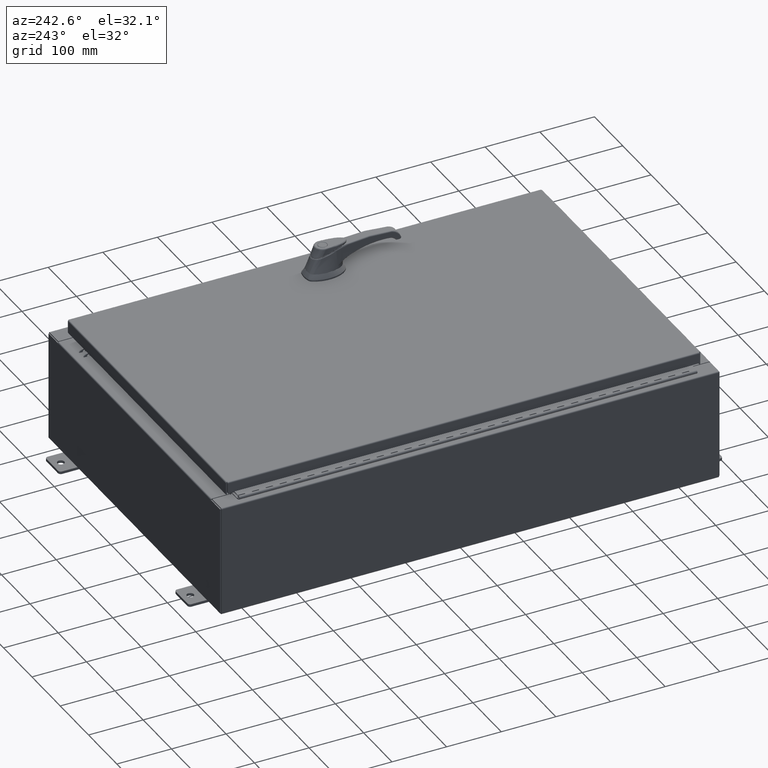
[diagram: clean part render]
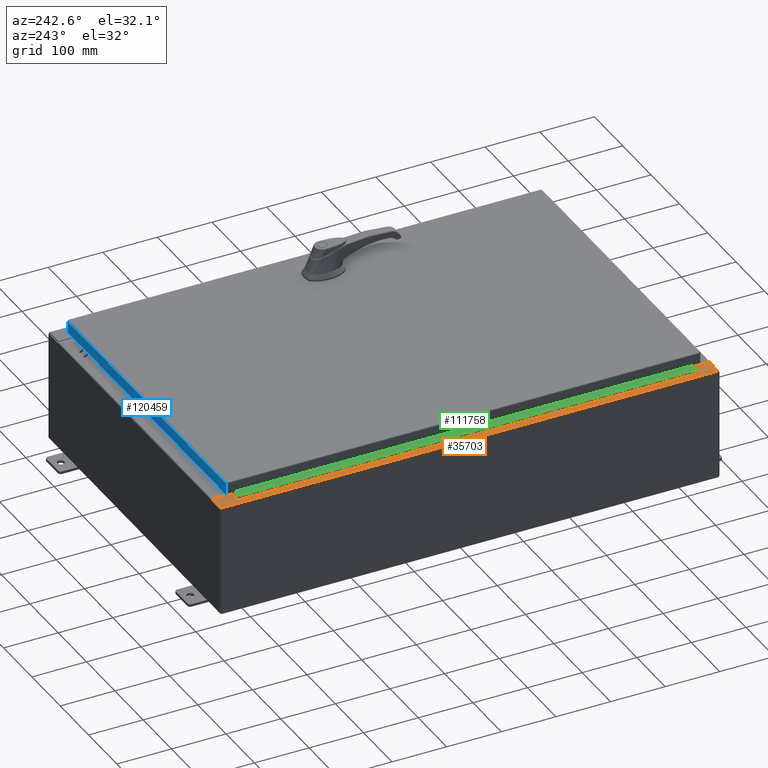
[diagram: same view with three faces highlighted in distinct colors, each labeled with its STEP entity id]
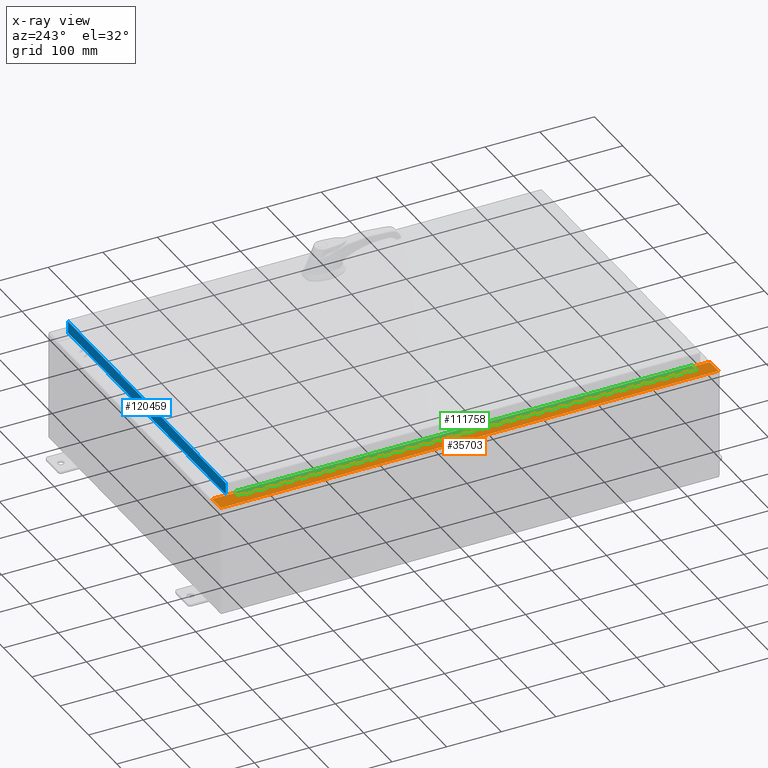
[diagram: x-ray of the same camera — body ghosted, the three highlighted faces saturated]
A machine part, auxiliary view with three faces highlighted in distinct colors.
The next image is the same camera in x-ray (body ghosted, the three faces saturated) — at least one of them is partly hidden behind the body in this view.
Their STEP definitions:

[orange] entity #35703 — the highlighted planar face has unit normal (0, 0, -1).
#2703 = EDGE_CURVE ( 'NONE', #100783, #73863, #89244, .T. ) ;
#3445 = DIRECTION ( 'NONE',  ( 7.132762385546384700E-015, 0.0000000000000000000, -1.000000000000000000 ) ) ;
#3683 = CARTESIAN_POINT ( 'NONE',  ( -5.679009539018295300E-014, 17.92529999999999600, 7.925300000000085300 ) ) ;
#5045 = VECTOR ( 'NONE', #13373, 39.37007874015748100 ) ;
#5261 = VERTEX_POINT ( 'NONE', #50785 ) ;
#7211 = CARTESIAN_POINT ( 'NONE',  ( -10.69970000000003000, 16.63110000000000000, 7.925300000000009800 ) ) ;
#8827 = DIRECTION ( 'NONE',  ( -7.132762385546384700E-015, -0.0000000000000000000, 1.000000000000000000 ) ) ;
#9139 = ORIENTED_EDGE ( 'NONE', *, *, #57194, .F. ) ;
#9217 = CARTESIAN_POINT ( 'NONE',  ( -10.71270000000003000, -16.59375000000000400, 7.925300000000010700 ) ) ;
#9219 = VERTEX_POINT ( 'NONE', #84929 ) ;
#9582 = VECTOR ( 'NONE', #52990, 39.37007874015748100 ) ;
#11596 = VERTEX_POINT ( 'NONE', #84710 ) ;
#13373 = DIRECTION ( 'NONE',  ( 1.000000000000000000, -0.0000000000000000000, 7.132762385546384700E-015 ) ) ;
#14047 = DIRECTION ( 'NONE',  ( 1.000000000000000000, -4.340572780400098900E-014, -2.170286390200049500E-014 ) ) ;
#14561 = CARTESIAN_POINT ( 'NONE',  ( -10.71270000000003000, -16.59375000000000400, 7.925300000000010700 ) ) ;
#14760 = CARTESIAN_POINT ( 'NONE',  ( -10.69970000000003000, 0.0000000000000000000, 7.925300000000008900 ) ) ;
#18929 = CARTESIAN_POINT ( 'NONE',  ( -10.69970000000003000, 17.92529999999999600, 7.925300000000008900 ) ) ;
#19678 = EDGE_CURVE ( 'NONE', #5261, #69593, #73473, .T. ) ;
#22729 = LINE ( 'NONE', #65748, #36108 ) ;
#23803 = ORIENTED_EDGE ( 'NONE', *, *, #78941, .T. ) ;
#24549 = EDGE_LOOP ( 'NONE', ( #47423, #48483, #98053, #122124, #88246, #23803, #93558, #110491, #121472, #85257, #62821, #9139 ) ) ;
#28030 = VERTEX_POINT ( 'NONE', #76485 ) ;
#30114 = EDGE_CURVE ( 'NONE', #32064, #30749, #65403, .T. ) ;
#30749 = VERTEX_POINT ( 'NONE', #14561 ) ;
#31819 = CARTESIAN_POINT ( 'NONE',  ( -5.679009539018295300E-014, 0.0000000000000000000, 7.925300000000085300 ) ) ;
#32064 = VERTEX_POINT ( 'NONE', #77653 ) ;
#35703 = ADVANCED_FACE ( 'NONE', ( #116687 ), #107806, .F. ) ;
#35938 = DIRECTION ( 'NONE',  ( -1.000000000000000000, -4.340572780400098900E-014, 2.170286390200049500E-014 ) ) ;
#35984 = AXIS2_PLACEMENT_3D ( 'NONE', #36467, #102947, #46008 ) ;
#36108 = VECTOR ( 'NONE', #94077, 39.37007874015748100 ) ;
#36467 = CARTESIAN_POINT ( 'NONE',  ( -10.75005000000003000, -16.61242500000000200, 7.925300000000010700 ) ) ;
#41198 = LINE ( 'NONE', #9217, #44217 ) ;
#42456 = CARTESIAN_POINT ( 'NONE',  ( -5.679009539018295300E-014, -17.92530000000000400, 7.925300000000085300 ) ) ;
#42894 = VERTEX_POINT ( 'NONE', #48045 ) ;
#44217 = VECTOR ( 'NONE', #75719, 39.37007874015748100 ) ;
#44601 = CARTESIAN_POINT ( 'NONE',  ( -10.75005000000003000, -16.63110000000000400, 7.925300000000008900 ) ) ;
#46008 = DIRECTION ( 'NONE',  ( 1.000000000000000000, 0.0000000000000000000, 0.0000000000000000000 ) ) ;
#47073 = EDGE_CURVE ( 'NONE', #9219, #73863, #68325, .T. ) ;
#47423 = ORIENTED_EDGE ( 'NONE', *, *, #19678, .F. ) ;
#48045 = CARTESIAN_POINT ( 'NONE',  ( -10.69970000000003000, -16.63110000000000700, 7.925300000000008900 ) ) ;
#48483 = ORIENTED_EDGE ( 'NONE', *, *, #49401, .T. ) ;
#48908 = AXIS2_PLACEMENT_3D ( 'NONE', #65724, #8827, #75352 ) ;
#49401 = EDGE_CURVE ( 'NONE', #5261, #100783, #112390, .T. ) ;
#50785 = CARTESIAN_POINT ( 'NONE',  ( -10.69970000000003000, 16.63110000000000000, 7.925300000000008900 ) ) ;
#52428 = CARTESIAN_POINT ( 'NONE',  ( -10.71270000000003000, 16.59375000000000000, 7.925300000000010700 ) ) ;
#52890 = EDGE_CURVE ( 'NONE', #79342, #32064, #22729, .T. ) ;
#52990 = DIRECTION ( 'NONE',  ( 0.0000000000000000000, 1.000000000000000000, 0.0000000000000000000 ) ) ;
#53510 = CIRCLE ( 'NONE', #48908, 0.01867499999999949400 ) ;
#55639 = LINE ( 'NONE', #42456, #5045 ) ;
#57194 = EDGE_CURVE ( 'NONE', #69593, #79342, #53510, .T. ) ;
#60924 = VECTOR ( 'NONE', #114614, 39.37007874015748100 ) ;
#62057 = DIRECTION ( 'NONE',  ( 0.0000000000000000000, 1.000000000000000000, 0.0000000000000000000 ) ) ;
#62821 = ORIENTED_EDGE ( 'NONE', *, *, #52890, .F. ) ;
#65403 = LINE ( 'NONE', #52428, #118950 ) ;
#65724 = CARTESIAN_POINT ( 'NONE',  ( -10.75005000000003000, 16.61242499999999800, 7.925300000000010700 ) ) ;
#65748 = CARTESIAN_POINT ( 'NONE',  ( -10.75005000000003000, 16.59375000000000000, 7.925300000000010700 ) ) ;
#68325 = LINE ( 'NONE', #118302, #90680 ) ;
#69593 = VERTEX_POINT ( 'NONE', #71769 ) ;
#70000 = DIRECTION ( 'NONE',  ( -1.000000000000000000, 0.0000000000000000000, -7.132762385546384700E-015 ) ) ;
#71769 = CARTESIAN_POINT ( 'NONE',  ( -10.75005000000003000, 16.63110000000000000, 7.925300000000008900 ) ) ;
#73473 = LINE ( 'NONE', #7211, #92795 ) ;
#73863 = VERTEX_POINT ( 'NONE', #111576 ) ;
#75352 = DIRECTION ( 'NONE',  ( 1.000000000000000000, 0.0000000000000000000, 0.0000000000000000000 ) ) ;
#75719 = DIRECTION ( 'NONE',  ( -1.000000000000000000, 0.0000000000000000000, 0.0000000000000000000 ) ) ;
#76485 = CARTESIAN_POINT ( 'NONE',  ( -10.75005000000003000, -16.59375000000000400, 7.925300000000008900 ) ) ;
#77653 = CARTESIAN_POINT ( 'NONE',  ( -10.71270000000003000, 16.59375000000000000, 7.925300000000010700 ) ) ;
#78941 = EDGE_CURVE ( 'NONE', #11596, #42894, #85458, .T. ) ;
#79342 = VERTEX_POINT ( 'NONE', #108372 ) ;
#80506 = DIRECTION ( 'NONE',  ( -0.0000000000000000000, 1.000000000000000000, -0.0000000000000000000 ) ) ;
#81669 = VERTEX_POINT ( 'NONE', #44601 ) ;
#84710 = CARTESIAN_POINT ( 'NONE',  ( -10.69970000000003000, -17.92530000000000400, 7.925300000000008900 ) ) ;
#84929 = CARTESIAN_POINT ( 'NONE',  ( -11.91230000000002900, -17.92530000000000400, 7.925300000000000000 ) ) ;
#85172 = AXIS2_PLACEMENT_3D ( 'NONE', #31819, #3445, #70000 ) ;
#85257 = ORIENTED_EDGE ( 'NONE', *, *, #30114, .F. ) ;
#85458 = LINE ( 'NONE', #14760, #9582 ) ;
#87914 = EDGE_CURVE ( 'NONE', #30749, #28030, #41198, .T. ) ;
#88246 = ORIENTED_EDGE ( 'NONE', *, *, #117494, .T. ) ;
#89244 = LINE ( 'NONE', #3683, #60924 ) ;
#89252 = CIRCLE ( 'NONE', #35984, 0.01867499999999949400 ) ;
#90096 = CARTESIAN_POINT ( 'NONE',  ( -10.75005000000003000, -16.63110000000000400, 7.925300000000010700 ) ) ;
#90680 = VECTOR ( 'NONE', #80506, 39.37007874015748100 ) ;
#90779 = CARTESIAN_POINT ( 'NONE',  ( -10.69970000000003000, 0.0000000000000000000, 7.925300000000008900 ) ) ;
#92769 = LINE ( 'NONE', #90096, #117989 ) ;
#92795 = VECTOR ( 'NONE', #35938, 39.37007874015748100 ) ;
#93558 = ORIENTED_EDGE ( 'NONE', *, *, #118062, .F. ) ;
#94077 = DIRECTION ( 'NONE',  ( 1.000000000000000000, 0.0000000000000000000, 0.0000000000000000000 ) ) ;
#98053 = ORIENTED_EDGE ( 'NONE', *, *, #2703, .T. ) ;
#100783 = VERTEX_POINT ( 'NONE', #18929 ) ;
#102947 = DIRECTION ( 'NONE',  ( -7.132762385546384700E-015, -0.0000000000000000000, 1.000000000000000000 ) ) ;
#107806 = PLANE ( 'NONE',  #85172 ) ;
#108372 = CARTESIAN_POINT ( 'NONE',  ( -10.75005000000003000, 16.59375000000000000, 7.925300000000008900 ) ) ;
#109707 = EDGE_CURVE ( 'NONE', #28030, #81669, #89252, .T. ) ;
#110491 = ORIENTED_EDGE ( 'NONE', *, *, #109707, .F. ) ;
#111576 = CARTESIAN_POINT ( 'NONE',  ( -11.91230000000002900, 17.92529999999999600, 7.925300000000000000 ) ) ;
#112390 = LINE ( 'NONE', #90779, #115349 ) ;
#114614 = DIRECTION ( 'NONE',  ( -1.000000000000000000, 0.0000000000000000000, -7.132762385546384700E-015 ) ) ;
#115349 = VECTOR ( 'NONE', #62057, 39.37007874015748100 ) ;
#116687 = FACE_OUTER_BOUND ( 'NONE', #24549, .T. ) ;
#117494 = EDGE_CURVE ( 'NONE', #9219, #11596, #55639, .T. ) ;
#117989 = VECTOR ( 'NONE', #14047, 39.37007874015748100 ) ;
#118062 = EDGE_CURVE ( 'NONE', #81669, #42894, #92769, .T. ) ;
#118302 = CARTESIAN_POINT ( 'NONE',  ( -11.91230000000002900, 17.92529999999999600, 7.925300000000000000 ) ) ;
#118902 = DIRECTION ( 'NONE',  ( -0.0000000000000000000, -1.000000000000000000, -0.0000000000000000000 ) ) ;
#118950 = VECTOR ( 'NONE', #118902, 39.37007874015748100 ) ;
#121472 = ORIENTED_EDGE ( 'NONE', *, *, #87914, .F. ) ;
#122124 = ORIENTED_EDGE ( 'NONE', *, *, #47073, .F. ) ;

[blue] entity #120459 — the highlighted planar face has unit normal (0, -1, -0).
#20 = DIRECTION ( 'NONE',  ( 3.122488847327582500E-031, -1.000000000000000000, -2.532419924601858200E-015 ) ) ;
#2791 = LINE ( 'NONE', #32999, #78706 ) ;
#3621 = EDGE_CURVE ( 'NONE', #101804, #48511, #44557, .T. ) ;
#5667 = CARTESIAN_POINT ( 'NONE',  ( 10.98915786437626500, 17.09400000000000800, 4.354999984715576500E-014 ) ) ;
#5870 = LINE ( 'NONE', #74531, #101112 ) ;
#9405 = EDGE_LOOP ( 'NONE', ( #47089, #22306, #68558, #81794 ) ) ;
#14121 = VECTOR ( 'NONE', #94243, 39.37007874015748100 ) ;
#20441 = VERTEX_POINT ( 'NONE', #115510 ) ;
#22306 = ORIENTED_EDGE ( 'NONE', *, *, #3621, .T. ) ;
#28407 = CARTESIAN_POINT ( 'NONE',  ( -5.337582435621772200E-030, 17.09400000000000800, 4.354999984715576500E-014 ) ) ;
#32999 = CARTESIAN_POINT ( 'NONE',  ( -11.07800000000000300, 17.09400000000000800, -0.9377000000000025300 ) ) ;
#44557 = LINE ( 'NONE', #5667, #92126 ) ;
#47089 = ORIENTED_EDGE ( 'NONE', *, *, #57182, .F. ) ;
#48511 = VERTEX_POINT ( 'NONE', #58048 ) ;
#49797 = CARTESIAN_POINT ( 'NONE',  ( 10.98915786437626500, 17.09400000000000800, -0.08770000000000008300 ) ) ;
#50304 = EDGE_CURVE ( 'NONE', #20441, #93242, #109265, .T. ) ;
#57182 = EDGE_CURVE ( 'NONE', #101804, #20441, #5870, .T. ) ;
#57413 = FACE_OUTER_BOUND ( 'NONE', #9405, .T. ) ;
#58048 = CARTESIAN_POINT ( 'NONE',  ( 10.98915786437626500, 17.09400000000000800, -0.9376999999999997600 ) ) ;
#65335 = DIRECTION ( 'NONE',  ( -1.000000000000000000, -3.122488847327583000E-031, -7.817847125977018100E-046 ) ) ;
#66573 = DIRECTION ( 'NONE',  ( 0.0000000000000000000, 2.532419924601858200E-015, -1.000000000000000000 ) ) ;
#67045 = EDGE_CURVE ( 'NONE', #93242, #48511, #2791, .T. ) ;
#68171 = DIRECTION ( 'NONE',  ( 0.0000000000000000000, 2.532419924601858200E-015, -1.000000000000000000 ) ) ;
#68558 = ORIENTED_EDGE ( 'NONE', *, *, #67045, .F. ) ;
#74531 = CARTESIAN_POINT ( 'NONE',  ( -11.07800000000000300, 17.09400000000000800, -0.08770000000000008300 ) ) ;
#74961 = PLANE ( 'NONE',  #101867 ) ;
#75143 = CARTESIAN_POINT ( 'NONE',  ( -10.98915786437627200, 17.09400000000000800, -0.07469999999999980800 ) ) ;
#78706 = VECTOR ( 'NONE', #89908, 39.37007874015748100 ) ;
#81794 = ORIENTED_EDGE ( 'NONE', *, *, #50304, .F. ) ;
#89908 = DIRECTION ( 'NONE',  ( 1.000000000000000000, -4.379057701015054300E-047, 1.233005954894504400E-016 ) ) ;
#92126 = VECTOR ( 'NONE', #68171, 39.37007874015748100 ) ;
#93242 = VERTEX_POINT ( 'NONE', #122685 ) ;
#94243 = DIRECTION ( 'NONE',  ( -0.0000000000000000000, 2.532419924601858200E-015, -1.000000000000000000 ) ) ;
#101112 = VECTOR ( 'NONE', #65335, 39.37007874015748100 ) ;
#101804 = VERTEX_POINT ( 'NONE', #49797 ) ;
#101867 = AXIS2_PLACEMENT_3D ( 'NONE', #28407, #20, #66573 ) ;
#109265 = LINE ( 'NONE', #75143, #14121 ) ;
#115510 = CARTESIAN_POINT ( 'NONE',  ( -10.98915786437626900, 17.09400000000000800, -0.08770000000000008300 ) ) ;
#120459 = ADVANCED_FACE ( 'NONE', ( #57413 ), #74961, .F. ) ;
#122685 = CARTESIAN_POINT ( 'NONE',  ( -10.98915786437627200, 17.09400000000000800, -0.9377000000000025300 ) ) ;

[green] entity #111758 — the highlighted planar face has unit normal (-0, -0, 1).
#2 = DIRECTION ( 'NONE',  ( 0.0000000000000000000, -0.0000000000000000000, -1.000000000000000000 ) ) ;
#63 = DIRECTION ( 'NONE',  ( -3.389037039080723100E-015, -1.000000000000000000, 0.0000000000000000000 ) ) ;
#79 = EDGE_CURVE ( 'NONE', #34016, #101136, #25712, .T. ) ;
#227 = ORIENTED_EDGE ( 'NONE', *, *, #13594, .F. ) ;
#299 = VECTOR ( 'NONE', #63747, 39.37007874015748100 ) ;
#480 = CARTESIAN_POINT ( 'NONE',  ( -0.6869999999999978300, 0.6754999999999996600, -33.00000000000000000 ) ) ;
#529 = LINE ( 'NONE', #36370, #98820 ) ;
#569 = VERTEX_POINT ( 'NONE', #74265 ) ;
#573 = VERTEX_POINT ( 'NONE', #22222 ) ;
#577 = VECTOR ( 'NONE', #99021, 39.37007874015748100 ) ;
#683 = CARTESIAN_POINT ( 'NONE',  ( -0.6869999999999978300, 0.6754999999999996600, -9.500000000000000000 ) ) ;
#712 = LINE ( 'NONE', #22294, #6747 ) ;
#862 = CARTESIAN_POINT ( 'NONE',  ( -0.6869999999999973900, 0.8004999999999995500, -23.50000000000000000 ) ) ;
#868 = CARTESIAN_POINT ( 'NONE',  ( -0.6869999999999982800, 0.5504999999999997700, -5.500000000000000000 ) ) ;
#1275 = DIRECTION ( 'NONE',  ( 0.0000000000000000000, 0.0000000000000000000, 1.000000000000000000 ) ) ;
#1296 = CARTESIAN_POINT ( 'NONE',  ( -0.6869999999999973900, 0.8004999999999995500, -16.00000000000000000 ) ) ;
#1381 = CARTESIAN_POINT ( 'NONE',  ( -0.6869999999999982800, 0.5504999999999997700, -14.49999999999999800 ) ) ;
#1582 = CARTESIAN_POINT ( 'NONE',  ( -0.6869999999999978300, 0.6754999999999996600, -21.00000000000000000 ) ) ;
#1632 = EDGE_CURVE ( 'NONE', #88469, #74232, #6092, .T. ) ;
#1749 = DIRECTION ( 'NONE',  ( 0.0000000000000000000, 0.0000000000000000000, 1.000000000000000000 ) ) ;
#1874 = VERTEX_POINT ( 'NONE', #1381 ) ;
#1916 = CARTESIAN_POINT ( 'NONE',  ( -0.6869999999999978300, 0.6754999999999996600, -19.00000000000000000 ) ) ;
#1986 = VERTEX_POINT ( 'NONE', #49731 ) ;
#2027 = ORIENTED_EDGE ( 'NONE', *, *, #51117, .F. ) ;
#2093 = ORIENTED_EDGE ( 'NONE', *, *, #51942, .F. ) ;
#2217 = CARTESIAN_POINT ( 'NONE',  ( -0.6869999999999982800, 0.5504999999999997700, -15.50000000000000000 ) ) ;
#2299 = EDGE_CURVE ( 'NONE', #35794, #62834, #90798, .T. ) ;
#2575 = DIRECTION ( 'NONE',  ( 0.0000000000000000000, -0.0000000000000000000, -1.000000000000000000 ) ) ;
#2585 = LINE ( 'NONE', #64972, #75557 ) ;
#2636 = EDGE_CURVE ( 'NONE', #56252, #111753, #66884, .T. ) ;
#2676 = DIRECTION ( 'NONE',  ( 3.389037039080723100E-015, 1.000000000000000000, -0.0000000000000000000 ) ) ;
#2815 = VECTOR ( 'NONE', #1749, 39.37007874015748100 ) ;
#3049 = DIRECTION ( 'NONE',  ( 0.0000000000000000000, 0.0000000000000000000, 1.000000000000000000 ) ) ;
#3192 = VERTEX_POINT ( 'NONE', #89931 ) ;
#3433 = ORIENTED_EDGE ( 'NONE', *, *, #73842, .F. ) ;
#3869 = DIRECTION ( 'NONE',  ( 0.0000000000000000000, 0.0000000000000000000, 1.000000000000000000 ) ) ;
#4005 = DIRECTION ( 'NONE',  ( 3.389037039080723100E-015, 1.000000000000000000, -0.0000000000000000000 ) ) ;
#4487 = CARTESIAN_POINT ( 'NONE',  ( -0.6869999999999982800, 0.5504999999999997700, -6.499999999999999100 ) ) ;
#4722 = CARTESIAN_POINT ( 'NONE',  ( -0.6869999999999978300, 0.6754999999999996600, -26.00000000000000000 ) ) ;
#4759 = LINE ( 'NONE', #40012, #27157 ) ;
#4766 = EDGE_CURVE ( 'NONE', #84294, #43205, #22259, .T. ) ;
#4987 = LINE ( 'NONE', #123282, #30338 ) ;
#5482 = LINE ( 'NONE', #1296, #103676 ) ;
#5585 = DIRECTION ( 'NONE',  ( -3.389037039080723100E-015, -1.000000000000000000, 0.0000000000000000000 ) ) ;
#5774 = CARTESIAN_POINT ( 'NONE',  ( -0.6869999999999982800, 0.5504999999999997700, -31.00000000000000000 ) ) ;
#5812 = DIRECTION ( 'NONE',  ( 0.0000000000000000000, -0.0000000000000000000, -1.000000000000000000 ) ) ;
#5835 = DIRECTION ( 'NONE',  ( 0.0000000000000000000, -0.0000000000000000000, -1.000000000000000000 ) ) ;
#5838 = LINE ( 'NONE', #39690, #2815 ) ;
#5845 = CARTESIAN_POINT ( 'NONE',  ( -0.6869999999999978300, 0.6754999999999996600, -7.499999999999999100 ) ) ;
#5925 = LINE ( 'NONE', #63523, #104092 ) ;
#6092 = LINE ( 'NONE', #6510, #78974 ) ;
#6466 = VERTEX_POINT ( 'NONE', #104904 ) ;
#6510 = CARTESIAN_POINT ( 'NONE',  ( -0.6869999999999982800, 0.5504999999999997700, -27.50000000000000000 ) ) ;
#6523 = VECTOR ( 'NONE', #90376, 39.37007874015748100 ) ;
#6536 = ORIENTED_EDGE ( 'NONE', *, *, #93494, .F. ) ;
#6575 = DIRECTION ( 'NONE',  ( 3.389037039080723100E-015, 1.000000000000000000, -0.0000000000000000000 ) ) ;
#6630 = EDGE_CURVE ( 'NONE', #38675, #24908, #42079, .T. ) ;
#6678 = ORIENTED_EDGE ( 'NONE', *, *, #72329, .T. ) ;
#6729 = CARTESIAN_POINT ( 'NONE',  ( -0.6869999999999978300, 0.6754999999999996600, -12.99999999999999800 ) ) ;
#6747 = VECTOR ( 'NONE', #79205, 39.37007874015748100 ) ;
#6768 = DIRECTION ( 'NONE',  ( 0.0000000000000000000, -0.0000000000000000000, -1.000000000000000000 ) ) ;
#6813 = CARTESIAN_POINT ( 'NONE',  ( -0.6869999999999982800, 0.5504999999999997700, -2.500000000000000000 ) ) ;
#7052 = ORIENTED_EDGE ( 'NONE', *, *, #10780, .F. ) ;
#7080 = CARTESIAN_POINT ( 'NONE',  ( -0.6869999999999978300, 0.6754999999999996600, -33.00000000000000000 ) ) ;
#7285 = ORIENTED_EDGE ( 'NONE', *, *, #75127, .F. ) ;
#7372 = LINE ( 'NONE', #44149, #77264 ) ;
#7487 = ORIENTED_EDGE ( 'NONE', *, *, #20856, .T. ) ;
#7565 = ORIENTED_EDGE ( 'NONE', *, *, #43517, .F. ) ;
#7602 = CARTESIAN_POINT ( 'NONE',  ( -0.6869999999999978300, 0.6754999999999996600, -31.50000000000000400 ) ) ;
#7628 = VECTOR ( 'NONE', #104046, 39.37007874015748100 ) ;
#7659 = ORIENTED_EDGE ( 'NONE', *, *, #2636, .F. ) ;
#7978 = EDGE_CURVE ( 'NONE', #91204, #102802, #12135, .T. ) ;
#8031 = DIRECTION ( 'NONE',  ( 0.0000000000000000000, 0.0000000000000000000, 1.000000000000000000 ) ) ;
#8073 = LINE ( 'NONE', #111783, #75020 ) ;
#8164 = ORIENTED_EDGE ( 'NONE', *, *, #7978, .F. ) ;
#8201 = CARTESIAN_POINT ( 'NONE',  ( -0.6869999999999982800, 0.5504999999999997700, -20.00000000000000000 ) ) ;
#8259 = ORIENTED_EDGE ( 'NONE', *, *, #49742, .T. ) ;
#8312 = ORIENTED_EDGE ( 'NONE', *, *, #27765, .T. ) ;
#8410 = ORIENTED_EDGE ( 'NONE', *, *, #47380, .T. ) ;
#8458 = EDGE_CURVE ( 'NONE', #1986, #28306, #102800, .T. ) ;
#8652 = CARTESIAN_POINT ( 'NONE',  ( -0.6869999999999978300, 0.6754999999999996600, -33.00000000000000000 ) ) ;
#8698 = CARTESIAN_POINT ( 'NONE',  ( -0.6870000000000022800, -0.6245000000000003900, 0.0000000000000000000 ) ) ;
#8939 = CARTESIAN_POINT ( 'NONE',  ( -0.6869999999999982800, 0.5504999999999997700, -22.50000000000000000 ) ) ;
#9039 = VERTEX_POINT ( 'NONE', #118201 ) ;
#9130 = DIRECTION ( 'NONE',  ( 3.389037039080723100E-015, 1.000000000000000000, -0.0000000000000000000 ) ) ;
#9348 = EDGE_CURVE ( 'NONE', #6466, #89474, #55081, .T. ) ;
#9562 = VERTEX_POINT ( 'NONE', #43686 ) ;
#9645 = CARTESIAN_POINT ( 'NONE',  ( -0.6869999999999973900, 0.8004999999999995500, -8.000000000000000000 ) ) ;
#9798 = EDGE_CURVE ( 'NONE', #51662, #82851, #75834, .T. ) ;
#9980 = ORIENTED_EDGE ( 'NONE', *, *, #91281, .F. ) ;
#10493 = EDGE_CURVE ( 'NONE', #74232, #28306, #40058, .T. ) ;
#10513 = CARTESIAN_POINT ( 'NONE',  ( -0.6869999999999982800, 0.5504999999999997700, -9.500000000000000000 ) ) ;
#10516 = DIRECTION ( 'NONE',  ( -3.389037039080723100E-015, -1.000000000000000000, 0.0000000000000000000 ) ) ;
#10532 = VERTEX_POINT ( 'NONE', #27137 ) ;
#10558 = VECTOR ( 'NONE', #11477, 39.37007874015748100 ) ;
#10780 = EDGE_CURVE ( 'NONE', #106697, #569, #92071, .T. ) ;
#11066 = CARTESIAN_POINT ( 'NONE',  ( -0.6869999999999982800, 0.5504999999999997700, -28.50000000000000000 ) ) ;
#11169 = ORIENTED_EDGE ( 'NONE', *, *, #29959, .T. ) ;
#11477 = DIRECTION ( 'NONE',  ( -3.389037039080723100E-015, -1.000000000000000000, 0.0000000000000000000 ) ) ;
#11559 = CARTESIAN_POINT ( 'NONE',  ( -0.6869999999999978300, 0.6754999999999996600, -25.50000000000000400 ) ) ;
#11617 = LINE ( 'NONE', #56737, #109763 ) ;
#11754 = DIRECTION ( 'NONE',  ( 3.389037039080723100E-015, 1.000000000000000000, -0.0000000000000000000 ) ) ;
#11764 = ORIENTED_EDGE ( 'NONE', *, *, #117200, .F. ) ;
#11808 = DIRECTION ( 'NONE',  ( 0.0000000000000000000, -0.0000000000000000000, -1.000000000000000000 ) ) ;
#11852 = CARTESIAN_POINT ( 'NONE',  ( -0.6869999999999982800, 0.5504999999999997700, -7.000000000000000000 ) ) ;
#11870 = EDGE_CURVE ( 'NONE', #101613, #51430, #121625, .T. ) ;
#12067 = VECTOR ( 'NONE', #83343, 39.37007874015748100 ) ;
#12135 = LINE ( 'NONE', #114132, #34455 ) ;
#12226 = CARTESIAN_POINT ( 'NONE',  ( -0.6869999999999978300, 0.6754999999999996600, -33.00000000000000000 ) ) ;
#12577 = VECTOR ( 'NONE', #11754, 39.37007874015748100 ) ;
#12718 = CARTESIAN_POINT ( 'NONE',  ( -0.6869999999999978300, 0.6754999999999996600, -32.50000000000000000 ) ) ;
#12764 = EDGE_CURVE ( 'NONE', #102802, #26201, #93290, .T. ) ;
#13104 = VERTEX_POINT ( 'NONE', #47740 ) ;
#13408 = VECTOR ( 'NONE', #110495, 39.37007874015748100 ) ;
#13448 = CARTESIAN_POINT ( 'NONE',  ( -0.6869999999999982800, 0.5504999999999997700, -2.500000000000000000 ) ) ;
#13594 = EDGE_CURVE ( 'NONE', #50076, #43541, #76806, .T. ) ;
#13914 = EDGE_CURVE ( 'NONE', #35012, #35295, #115422, .T. ) ;
#13930 = LINE ( 'NONE', #53091, #86789 ) ;
#14487 = ORIENTED_EDGE ( 'NONE', *, *, #81256, .F. ) ;
#14634 = VERTEX_POINT ( 'NONE', #114797 ) ;
#14642 = VECTOR ( 'NONE', #44030, 39.37007874015748100 ) ;
#14953 = VERTEX_POINT ( 'NONE', #37401 ) ;
#15051 = VECTOR ( 'NONE', #55309, 39.37007874015748100 ) ;
#15340 = CARTESIAN_POINT ( 'NONE',  ( -0.6869999999999973900, 0.8004999999999995500, -23.00000000000000000 ) ) ;
#15491 = VERTEX_POINT ( 'NONE', #27216 ) ;
#15557 = EDGE_CURVE ( 'NONE', #36502, #27748, #15769, .T. ) ;
#15680 = LINE ( 'NONE', #18417, #21627 ) ;
#15769 = LINE ( 'NONE', #27608, #72259 ) ;
#15918 = EDGE_CURVE ( 'NONE', #14634, #52619, #39501, .T. ) ;
#16236 = DIRECTION ( 'NONE',  ( 0.0000000000000000000, -0.0000000000000000000, -1.000000000000000000 ) ) ;
#16437 = LINE ( 'NONE', #43643, #66920 ) ;
#16571 = LINE ( 'NONE', #76330, #114684 ) ;
#16588 = ORIENTED_EDGE ( 'NONE', *, *, #93308, .F. ) ;
#16666 = LINE ( 'NONE', #8652, #64192 ) ;
#16698 = ORIENTED_EDGE ( 'NONE', *, *, #71426, .T. ) ;
#16706 = VERTEX_POINT ( 'NONE', #71906 ) ;
#16727 = CARTESIAN_POINT ( 'NONE',  ( -0.6869999999999978300, 0.6754999999999996600, -32.00000000000000000 ) ) ;
#16739 = ORIENTED_EDGE ( 'NONE', *, *, #42126, .F. ) ;
#16740 = DIRECTION ( 'NONE',  ( 0.0000000000000000000, -0.0000000000000000000, -1.000000000000000000 ) ) ;
#16834 = VECTOR ( 'NONE', #2575, 39.37007874015748100 ) ;
#17220 = VECTOR ( 'NONE', #71020, 39.37007874015748100 ) ;
#17249 = CARTESIAN_POINT ( 'NONE',  ( -0.6869999999999978300, 0.6754999999999996600, -28.99999999999999600 ) ) ;
#17544 = CARTESIAN_POINT ( 'NONE',  ( -0.6869999999999973900, 0.8004999999999995500, -6.499999999999999100 ) ) ;
#17812 = LINE ( 'NONE', #8939, #46065 ) ;
#17832 = LINE ( 'NONE', #28545, #68323 ) ;
#17859 = DIRECTION ( 'NONE',  ( -3.389037039080723100E-015, -1.000000000000000000, 0.0000000000000000000 ) ) ;
#17886 = CARTESIAN_POINT ( 'NONE',  ( -0.6869999999999973900, 0.8004999999999995500, -17.00000000000000000 ) ) ;
#18230 = DIRECTION ( 'NONE',  ( 0.0000000000000000000, 0.0000000000000000000, 1.000000000000000000 ) ) ;
#18259 = DIRECTION ( 'NONE',  ( 3.389037039080723100E-015, 1.000000000000000000, -0.0000000000000000000 ) ) ;
#18417 = CARTESIAN_POINT ( 'NONE',  ( -0.6869999999999978300, 0.6754999999999996600, -33.00000000000000000 ) ) ;
#18433 = CARTESIAN_POINT ( 'NONE',  ( -0.6869999999999982800, 0.5504999999999997700, -2.999999999999999600 ) ) ;
#18457 = CARTESIAN_POINT ( 'NONE',  ( -0.6869999999999982800, 0.5504999999999997700, -32.50000000000000000 ) ) ;
#18514 = DIRECTION ( 'NONE',  ( 0.0000000000000000000, -0.0000000000000000000, -1.000000000000000000 ) ) ;
#18645 = VECTOR ( 'NONE', #30029, 39.37007874015748100 ) ;
#18990 = DIRECTION ( 'NONE',  ( -3.389037039080723100E-015, -1.000000000000000000, 0.0000000000000000000 ) ) ;
#19305 = LINE ( 'NONE', #69395, #83253 ) ;
#19372 = LINE ( 'NONE', #71842, #47591 ) ;
#19489 = EDGE_CURVE ( 'NONE', #114471, #75417, #60025, .T. ) ;
#19493 = CARTESIAN_POINT ( 'NONE',  ( -0.6869999999999978300, 0.6754999999999996600, -1.499999999999999800 ) ) ;
#19567 = LINE ( 'NONE', #83976, #38872 ) ;
#19730 = DIRECTION ( 'NONE',  ( 0.0000000000000000000, -0.0000000000000000000, -1.000000000000000000 ) ) ;
#19917 = VERTEX_POINT ( 'NONE', #106431 ) ;
#19989 = LINE ( 'NONE', #88462, #92862 ) ;
#20306 = CARTESIAN_POINT ( 'NONE',  ( -0.6869999999999982800, 0.5504999999999997700, -32.50000000000000000 ) ) ;
#20457 = CARTESIAN_POINT ( 'NONE',  ( -0.6869999999999973900, 0.8004999999999995500, -9.000000000000000000 ) ) ;
#20472 = CARTESIAN_POINT ( 'NONE',  ( -0.6869999999999978300, 0.6754999999999996600, -33.00000000000000000 ) ) ;
#20556 = VECTOR ( 'NONE', #82521, 39.37007874015748100 ) ;
#20762 = VERTEX_POINT ( 'NONE', #99741 ) ;
#20856 = EDGE_CURVE ( 'NONE', #47061, #108284, #24223, .T. ) ;
#21146 = CARTESIAN_POINT ( 'NONE',  ( -0.6869999999999973900, 0.8004999999999995500, -31.00000000000000000 ) ) ;
#21237 = CARTESIAN_POINT ( 'NONE',  ( -0.6869999999999982800, 0.5504999999999997700, -4.000000000000000000 ) ) ;
#21245 = CARTESIAN_POINT ( 'NONE',  ( -0.6869999999999982800, 0.5504999999999997700, -26.00000000000000000 ) ) ;
#21297 = VECTOR ( 'NONE', #76133, 39.37007874015748100 ) ;
#21316 = CARTESIAN_POINT ( 'NONE',  ( -0.6869999999999973900, 0.8004999999999995500, -5.000000000000000000 ) ) ;
#21582 = DIRECTION ( 'NONE',  ( 3.389037039080723100E-015, 1.000000000000000000, -0.0000000000000000000 ) ) ;
#21627 = VECTOR ( 'NONE', #37939, 39.37007874015748100 ) ;
#21657 = LINE ( 'NONE', #101599, #119784 ) ;
#21788 = CARTESIAN_POINT ( 'NONE',  ( -0.6869999999999982800, 0.5504999999999997700, -1.499999999999999800 ) ) ;
#21915 = ORIENTED_EDGE ( 'NONE', *, *, #96964, .F. ) ;
#21965 = DIRECTION ( 'NONE',  ( 3.389037039080723100E-015, 1.000000000000000000, -0.0000000000000000000 ) ) ;
#22093 = VECTOR ( 'NONE', #68374, 39.37007874015748100 ) ;
#22155 = CARTESIAN_POINT ( 'NONE',  ( -0.6869999999999982800, 0.5504999999999997700, -19.50000000000000000 ) ) ;
#22222 = CARTESIAN_POINT ( 'NONE',  ( -0.6869999999999978300, 0.6754999999999996600, -11.00000000000000000 ) ) ;
#22245 = VERTEX_POINT ( 'NONE', #42004 ) ;
#22259 = LINE ( 'NONE', #37721, #95116 ) ;
#22292 = EDGE_CURVE ( 'NONE', #106888, #65939, #19567, .T. ) ;
#22294 = CARTESIAN_POINT ( 'NONE',  ( -0.6869999999999973900, 0.8004999999999995500, -16.50000000000000000 ) ) ;
#22361 = VERTEX_POINT ( 'NONE', #19493 ) ;
#22546 = ORIENTED_EDGE ( 'NONE', *, *, #97377, .F. ) ;
#22622 = ORIENTED_EDGE ( 'NONE', *, *, #73825, .T. ) ;
#22693 = CARTESIAN_POINT ( 'NONE',  ( -0.6869999999999978300, 0.6754999999999996600, -33.00000000000000000 ) ) ;
#22698 = CARTESIAN_POINT ( 'NONE',  ( -0.6869999999999978300, 0.6754999999999996600, -33.00000000000000000 ) ) ;
#22714 = VECTOR ( 'NONE', #53657, 39.37007874015748100 ) ;
#22788 = VECTOR ( 'NONE', #26637, 39.37007874015748100 ) ;
#22999 = VECTOR ( 'NONE', #116016, 39.37007874015748100 ) ;
#23132 = ORIENTED_EDGE ( 'NONE', *, *, #105620, .F. ) ;
#23140 = ORIENTED_EDGE ( 'NONE', *, *, #83812, .T. ) ;
#23510 = VECTOR ( 'NONE', #32679, 39.37007874015748100 ) ;
#23652 = VECTOR ( 'NONE', #77504, 39.37007874015748100 ) ;
#23731 = VECTOR ( 'NONE', #120992, 39.37007874015748100 ) ;
#23876 = EDGE_CURVE ( 'NONE', #114342, #108284, #5925, .T. ) ;
#23904 = CARTESIAN_POINT ( 'NONE',  ( -0.6870000000000022800, -0.6245000000000003900, -33.00000000000000000 ) ) ;
#24119 = VERTEX_POINT ( 'NONE', #117024 ) ;
#24169 = ORIENTED_EDGE ( 'NONE', *, *, #108769, .F. ) ;
#24223 = LINE ( 'NONE', #91786, #27227 ) ;
#24539 = ORIENTED_EDGE ( 'NONE', *, *, #19489, .F. ) ;
#24574 = CARTESIAN_POINT ( 'NONE',  ( -0.6869999999999982800, 0.5504999999999997700, -32.00000000000000000 ) ) ;
#24702 = EDGE_CURVE ( 'NONE', #94342, #57854, #40703, .T. ) ;
#24758 = CARTESIAN_POINT ( 'NONE',  ( -0.6869999999999982800, 0.5504999999999997700, -4.500000000000000000 ) ) ;
#24908 = VERTEX_POINT ( 'NONE', #59275 ) ;
#25061 = ORIENTED_EDGE ( 'NONE', *, *, #6630, .F. ) ;
#25084 = EDGE_CURVE ( 'NONE', #43030, #111816, #45147, .T. ) ;
#25306 = DIRECTION ( 'NONE',  ( 0.0000000000000000000, 0.0000000000000000000, 1.000000000000000000 ) ) ;
#25328 = DIRECTION ( 'NONE',  ( 3.389037039080723100E-015, 1.000000000000000000, -0.0000000000000000000 ) ) ;
#25712 = LINE ( 'NONE', #12226, #22714 ) ;
#25983 = ORIENTED_EDGE ( 'NONE', *, *, #54696, .F. ) ;
#26157 = VECTOR ( 'NONE', #42728, 39.37007874015748100 ) ;
#26184 = DIRECTION ( 'NONE',  ( 0.0000000000000000000, 0.0000000000000000000, 1.000000000000000000 ) ) ;
#26201 = VERTEX_POINT ( 'NONE', #21237 ) ;
#26302 = CARTESIAN_POINT ( 'NONE',  ( -0.6869999999999978300, 0.6754999999999996600, -33.00000000000000000 ) ) ;
#26405 = VERTEX_POINT ( 'NONE', #52765 ) ;
#26637 = DIRECTION ( 'NONE',  ( -3.389037039080723100E-015, -1.000000000000000000, 0.0000000000000000000 ) ) ;
#26724 = EDGE_CURVE ( 'NONE', #75038, #75913, #16666, .T. ) ;
#26737 = CARTESIAN_POINT ( 'NONE',  ( -0.6869999999999982800, 0.5504999999999997700, -14.00000000000000000 ) ) ;
#27014 = EDGE_CURVE ( 'NONE', #36622, #62834, #122170, .T. ) ;
#27137 = CARTESIAN_POINT ( 'NONE',  ( -0.6869999999999978300, 0.6754999999999996600, -5.000000000000000000 ) ) ;
#27143 = ORIENTED_EDGE ( 'NONE', *, *, #9348, .F. ) ;
#27157 = VECTOR ( 'NONE', #59057, 39.37007874015748100 ) ;
#27216 = CARTESIAN_POINT ( 'NONE',  ( -0.6869999999999982800, 0.5504999999999997700, -29.99999999999999600 ) ) ;
#27227 = VECTOR ( 'NONE', #25306, 39.37007874015748100 ) ;
#27234 = CARTESIAN_POINT ( 'NONE',  ( -0.6869999999999978300, 0.6754999999999996600, -31.00000000000000000 ) ) ;
#27457 = DIRECTION ( 'NONE',  ( 3.389037039080723100E-015, 1.000000000000000000, -0.0000000000000000000 ) ) ;
#27608 = CARTESIAN_POINT ( 'NONE',  ( -0.6869999999999973900, 0.8004999999999995500, -32.00000000000000000 ) ) ;
#27748 = VERTEX_POINT ( 'NONE', #16727 ) ;
#27765 = EDGE_CURVE ( 'NONE', #110492, #102578, #56791, .T. ) ;
#27900 = CARTESIAN_POINT ( 'NONE',  ( -0.6869999999999978300, 0.6754999999999996600, -33.00000000000000000 ) ) ;
#27906 = VERTEX_POINT ( 'NONE', #94383 ) ;
#27941 = EDGE_CURVE ( 'NONE', #32592, #60131, #41929, .T. ) ;
#28009 = CARTESIAN_POINT ( 'NONE',  ( -0.6869999999999978300, 0.6754999999999996600, -33.00000000000000000 ) ) ;
#28132 = DIRECTION ( 'NONE',  ( 3.389037039080723100E-015, 1.000000000000000000, -0.0000000000000000000 ) ) ;
#28146 = ORIENTED_EDGE ( 'NONE', *, *, #28866, .F. ) ;
#28178 = DIRECTION ( 'NONE',  ( 0.0000000000000000000, 0.0000000000000000000, 1.000000000000000000 ) ) ;
#28306 = VERTEX_POINT ( 'NONE', #98084 ) ;
#28394 = CARTESIAN_POINT ( 'NONE',  ( -0.6869999999999978300, 0.6754999999999996600, -11.99999999999999800 ) ) ;
#28545 = CARTESIAN_POINT ( 'NONE',  ( -0.6869999999999973900, 0.8004999999999995500, -4.000000000000000000 ) ) ;
#28686 = LINE ( 'NONE', #6813, #299 ) ;
#28744 = VERTEX_POINT ( 'NONE', #114165 ) ;
#28759 = EDGE_CURVE ( 'NONE', #14953, #75581, #16571, .T. ) ;
#28777 = DIRECTION ( 'NONE',  ( 0.0000000000000000000, 0.0000000000000000000, 1.000000000000000000 ) ) ;
#28841 = ORIENTED_EDGE ( 'NONE', *, *, #9798, .T. ) ;
#28866 = EDGE_CURVE ( 'NONE', #36622, #115078, #35898, .T. ) ;
#29175 = ORIENTED_EDGE ( 'NONE', *, *, #101518, .F. ) ;
#29233 = CARTESIAN_POINT ( 'NONE',  ( -0.6869999999999973900, 0.8004999999999995500, -15.50000000000000000 ) ) ;
#29519 = DIRECTION ( 'NONE',  ( 0.0000000000000000000, -0.0000000000000000000, -1.000000000000000000 ) ) ;
#29696 = ORIENTED_EDGE ( 'NONE', *, *, #79256, .F. ) ;
#29821 = VECTOR ( 'NONE', #110783, 39.37007874015748100 ) ;
#29959 = EDGE_CURVE ( 'NONE', #118217, #67663, #99728, .T. ) ;
#30029 = DIRECTION ( 'NONE',  ( 0.0000000000000000000, 0.0000000000000000000, 1.000000000000000000 ) ) ;
#30067 = CARTESIAN_POINT ( 'NONE',  ( -0.6869999999999982800, 0.5504999999999997700, -23.50000000000000000 ) ) ;
#30094 = VECTOR ( 'NONE', #10516, 39.37007874015748100 ) ;
#30338 = VECTOR ( 'NONE', #28178, 39.37007874015748100 ) ;
#30385 = VERTEX_POINT ( 'NONE', #105568 ) ;
#30473 = CARTESIAN_POINT ( 'NONE',  ( -0.6869999999999982800, 0.5504999999999997700, -3.500000000000000000 ) ) ;
#30549 = CARTESIAN_POINT ( 'NONE',  ( -0.6869999999999982800, 0.5504999999999997700, -25.50000000000000400 ) ) ;
#30588 = EDGE_CURVE ( 'NONE', #26405, #24119, #19305, .T. ) ;
#30865 = CARTESIAN_POINT ( 'NONE',  ( -0.6869999999999978300, 0.6754999999999996600, -33.00000000000000000 ) ) ;
#31066 = CARTESIAN_POINT ( 'NONE',  ( -0.6869999999999982800, 0.5504999999999997700, -10.50000000000000000 ) ) ;
#31652 = VERTEX_POINT ( 'NONE', #42813 ) ;
#31779 = EDGE_CURVE ( 'NONE', #16706, #24119, #39916, .T. ) ;
#31878 = CARTESIAN_POINT ( 'NONE',  ( -0.6869999999999978300, 0.6754999999999996600, -24.50000000000000000 ) ) ;
#31899 = EDGE_CURVE ( 'NONE', #95212, #121550, #81561, .T. ) ;
#32099 = CARTESIAN_POINT ( 'NONE',  ( -0.6869999999999978300, 0.6754999999999996600, -29.99999999999999600 ) ) ;
#32164 = ORIENTED_EDGE ( 'NONE', *, *, #117456, .F. ) ;
#32166 = EDGE_CURVE ( 'NONE', #86393, #114342, #114213, .T. ) ;
#32312 = ORIENTED_EDGE ( 'NONE', *, *, #113671, .F. ) ;
#32324 = ORIENTED_EDGE ( 'NONE', *, *, #86396, .F. ) ;
#32505 = CARTESIAN_POINT ( 'NONE',  ( -0.6869999999999973900, 0.8004999999999995500, -17.99999999999999600 ) ) ;
#32592 = VERTEX_POINT ( 'NONE', #112881 ) ;
#32679 = DIRECTION ( 'NONE',  ( 0.0000000000000000000, 0.0000000000000000000, 1.000000000000000000 ) ) ;
#32689 = ORIENTED_EDGE ( 'NONE', *, *, #111888, .T. ) ;
#32794 = VECTOR ( 'NONE', #72971, 39.37007874015748100 ) ;
#32901 = ORIENTED_EDGE ( 'NONE', *, *, #70499, .F. ) ;
#32946 = CARTESIAN_POINT ( 'NONE',  ( -0.6869999999999978300, 0.6754999999999996600, -3.500000000000000000 ) ) ;
#33023 = VECTOR ( 'NONE', #78188, 39.37007874015748100 ) ;
#33176 = CARTESIAN_POINT ( 'NONE',  ( -0.6869999999999973900, 0.8004999999999995500, -1.499999999999999800 ) ) ;
#33372 = VERTEX_POINT ( 'NONE', #39135 ) ;
#33461 = DIRECTION ( 'NONE',  ( 3.369016658928398200E-015, 1.000000000000000000, 0.0000000000000000000 ) ) ;
#34016 = VERTEX_POINT ( 'NONE', #105421 ) ;
#34391 = CARTESIAN_POINT ( 'NONE',  ( -0.6869999999999978300, 0.6754999999999996600, -33.00000000000000000 ) ) ;
#34455 = VECTOR ( 'NONE', #85884, 39.37007874015748100 ) ;
#34748 = DIRECTION ( 'NONE',  ( 0.0000000000000000000, -0.0000000000000000000, -1.000000000000000000 ) ) ;
#34972 = CARTESIAN_POINT ( 'NONE',  ( -0.6869999999999978300, 0.6754999999999996600, -9.000000000000000000 ) ) ;
#35012 = VERTEX_POINT ( 'NONE', #12718 ) ;
#35030 = EDGE_CURVE ( 'NONE', #30385, #94646, #712, .T. ) ;
#35081 = CARTESIAN_POINT ( 'NONE',  ( -0.6869999999999978300, 0.6754999999999996600, -17.00000000000000000 ) ) ;
#35086 = ORIENTED_EDGE ( 'NONE', *, *, #103145, .F. ) ;
#35295 = VERTEX_POINT ( 'NONE', #20306 ) ;
#35360 = CARTESIAN_POINT ( 'NONE',  ( -0.6869999999999982800, 0.5504999999999997700, -8.500000000000000000 ) ) ;
#35367 = DIRECTION ( 'NONE',  ( 0.0000000000000000000, 0.0000000000000000000, 1.000000000000000000 ) ) ;
#35721 = CARTESIAN_POINT ( 'NONE',  ( -0.6869999999999978300, 0.6754999999999996600, -33.00000000000000000 ) ) ;
#35737 = ORIENTED_EDGE ( 'NONE', *, *, #106877, .F. ) ;
#35794 = VERTEX_POINT ( 'NONE', #70824 ) ;
#35898 = LINE ( 'NONE', #115782, #10558 ) ;
#36177 = DIRECTION ( 'NONE',  ( -3.389037039080723100E-015, -1.000000000000000000, 0.0000000000000000000 ) ) ;
#36193 = EDGE_CURVE ( 'NONE', #3192, #83971, #92219, .T. ) ;
#36213 = VECTOR ( 'NONE', #86998, 39.37007874015748100 ) ;
#36370 = CARTESIAN_POINT ( 'NONE',  ( -0.6869999999999982800, 0.5504999999999997700, -9.500000000000000000 ) ) ;
#36377 = LINE ( 'NONE', #32505, #577 ) ;
#36392 = ORIENTED_EDGE ( 'NONE', *, *, #79444, .T. ) ;
#36502 = VERTEX_POINT ( 'NONE', #24574 ) ;
#36622 = VERTEX_POINT ( 'NONE', #54870 ) ;
#36689 = EDGE_CURVE ( 'NONE', #115640, #93024, #84712, .T. ) ;
#36698 = ORIENTED_EDGE ( 'NONE', *, *, #8458, .T. ) ;
#37003 = ORIENTED_EDGE ( 'NONE', *, *, #102715, .F. ) ;
#37117 = CARTESIAN_POINT ( 'NONE',  ( -0.6869999999999978300, 0.6754999999999996600, -20.00000000000000000 ) ) ;
#37185 = EDGE_CURVE ( 'NONE', #120986, #56252, #99523, .T. ) ;
#37401 = CARTESIAN_POINT ( 'NONE',  ( -0.6869999999999978300, 0.6754999999999996600, -23.50000000000000000 ) ) ;
#37510 = ORIENTED_EDGE ( 'NONE', *, *, #64862, .F. ) ;
#37534 = VECTOR ( 'NONE', #92423, 39.37007874015748100 ) ;
#37567 = CARTESIAN_POINT ( 'NONE',  ( -0.6869999999999978300, 0.6754999999999996600, -29.50000000000000000 ) ) ;
#37587 = CARTESIAN_POINT ( 'NONE',  ( -0.6869999999999982800, 0.5504999999999997700, -7.499999999999999100 ) ) ;
#37721 = CARTESIAN_POINT ( 'NONE',  ( -0.6869999999999978300, 0.6754999999999996600, -33.00000000000000000 ) ) ;
#37759 = DIRECTION ( 'NONE',  ( -3.389037039080723100E-015, -1.000000000000000000, 0.0000000000000000000 ) ) ;
#37841 = VECTOR ( 'NONE', #64861, 39.37007874015748100 ) ;
#37868 = LINE ( 'NONE', #40032, #12577 ) ;
#37939 = DIRECTION ( 'NONE',  ( 0.0000000000000000000, 0.0000000000000000000, 1.000000000000000000 ) ) ;
#38001 = ORIENTED_EDGE ( 'NONE', *, *, #15918, .F. ) ;
#38110 = VECTOR ( 'NONE', #19730, 39.37007874015748100 ) ;
#38120 = DIRECTION ( 'NONE',  ( 0.0000000000000000000, 0.0000000000000000000, 1.000000000000000000 ) ) ;
#38521 = DIRECTION ( 'NONE',  ( 0.0000000000000000000, 0.0000000000000000000, 1.000000000000000000 ) ) ;
#38674 = LINE ( 'NONE', #15340, #13408 ) ;
#38675 = VERTEX_POINT ( 'NONE', #122603 ) ;
#38720 = VECTOR ( 'NONE', #56498, 39.37007874015748100 ) ;
#38827 = VECTOR ( 'NONE', #67393, 39.37007874015748100 ) ;
#38872 = VECTOR ( 'NONE', #18259, 39.37007874015748100 ) ;
#38988 = CARTESIAN_POINT ( 'NONE',  ( -0.6869999999999978300, 0.6754999999999996600, -13.50000000000000000 ) ) ;
#39135 = CARTESIAN_POINT ( 'NONE',  ( -0.6869999999999982800, 0.5504999999999997700, -26.50000000000000400 ) ) ;
#39501 = LINE ( 'NONE', #4487, #17220 ) ;
#39622 = CARTESIAN_POINT ( 'NONE',  ( -0.6869999999999982800, 0.5504999999999997700, -21.00000000000000000 ) ) ;
#39671 = VECTOR ( 'NONE', #2676, 39.37007874015748100 ) ;
#39690 = CARTESIAN_POINT ( 'NONE',  ( -0.6869999999999978300, 0.6754999999999996600, -33.00000000000000000 ) ) ;
#39763 = CARTESIAN_POINT ( 'NONE',  ( -0.6869999999999982800, 0.5504999999999997700, -24.50000000000000000 ) ) ;
#39916 = LINE ( 'NONE', #120043, #14642 ) ;
#39929 = VERTEX_POINT ( 'NONE', #44198 ) ;
#40012 = CARTESIAN_POINT ( 'NONE',  ( -0.6869999999999973900, 0.8004999999999995500, -28.99999999999999600 ) ) ;
#40028 = ORIENTED_EDGE ( 'NONE', *, *, #77821, .F. ) ;
#40032 = CARTESIAN_POINT ( 'NONE',  ( -0.6869999999999973900, 0.8004999999999995500, -21.00000000000000000 ) ) ;
#40058 = LINE ( 'NONE', #45819, #59319 ) ;
#40160 = ORIENTED_EDGE ( 'NONE', *, *, #88969, .F. ) ;
#40226 = CARTESIAN_POINT ( 'NONE',  ( -0.6869999999999982800, 0.5504999999999997700, -27.00000000000000000 ) ) ;
#40703 = LINE ( 'NONE', #35360, #113588 ) ;
#40856 = ORIENTED_EDGE ( 'NONE', *, *, #74150, .F. ) ;
#41215 = ORIENTED_EDGE ( 'NONE', *, *, #25084, .F. ) ;
#41339 = CARTESIAN_POINT ( 'NONE',  ( -0.6869999999999982800, 0.5504999999999997700, -18.50000000000000000 ) ) ;
#41491 = LINE ( 'NONE', #116715, #63764 ) ;
#41664 = VECTOR ( 'NONE', #28132, 39.37007874015748100 ) ;
#41929 = LINE ( 'NONE', #56911, #114794 ) ;
#42004 = CARTESIAN_POINT ( 'NONE',  ( -0.6869999999999982800, 0.5504999999999997700, -11.99999999999999800 ) ) ;
#42079 = LINE ( 'NONE', #50017, #16834 ) ;
#42126 = EDGE_CURVE ( 'NONE', #55943, #14634, #94369, .T. ) ;
#42286 = VERTEX_POINT ( 'NONE', #94801 ) ;
#42355 = CARTESIAN_POINT ( 'NONE',  ( -0.6869999999999982800, 0.5504999999999997700, -16.50000000000000000 ) ) ;
#42493 = CARTESIAN_POINT ( 'NONE',  ( -0.6869999999999982800, 0.5504999999999997700, -17.00000000000000000 ) ) ;
#42728 = DIRECTION ( 'NONE',  ( -3.389037039080723100E-015, -1.000000000000000000, 0.0000000000000000000 ) ) ;
#42813 = CARTESIAN_POINT ( 'NONE',  ( -0.6869999999999982800, 0.5504999999999997700, -5.500000000000000000 ) ) ;
#42822 = EDGE_CURVE ( 'NONE', #53387, #42286, #4987, .T. ) ;
#42892 = EDGE_CURVE ( 'NONE', #19917, #120105, #100253, .T. ) ;
#42921 = EDGE_CURVE ( 'NONE', #65101, #28744, #71916, .T. ) ;
#43030 = VERTEX_POINT ( 'NONE', #80846 ) ;
#43205 = VERTEX_POINT ( 'NONE', #17249 ) ;
#43304 = CARTESIAN_POINT ( 'NONE',  ( -0.6869999999999973900, 0.8004999999999995500, -7.499999999999999100 ) ) ;
#43489 = VERTEX_POINT ( 'NONE', #10513 ) ;
#43517 = EDGE_CURVE ( 'NONE', #82806, #59404, #112029, .T. ) ;
#43541 = VERTEX_POINT ( 'NONE', #39622 ) ;
#43548 = DIRECTION ( 'NONE',  ( 0.0000000000000000000, -0.0000000000000000000, -1.000000000000000000 ) ) ;
#43607 = LINE ( 'NONE', #85717, #65846 ) ;
#43643 = CARTESIAN_POINT ( 'NONE',  ( -0.6869999999999978300, 0.6754999999999996600, -33.00000000000000000 ) ) ;
#43686 = CARTESIAN_POINT ( 'NONE',  ( -0.6869999999999978300, 0.6754999999999996600, -23.99999999999999600 ) ) ;
#43697 = ORIENTED_EDGE ( 'NONE', *, *, #48006, .F. ) ;
#43940 = CARTESIAN_POINT ( 'NONE',  ( -0.6869999999999978300, 0.6754999999999996600, -33.00000000000000000 ) ) ;
#43962 = VECTOR ( 'NONE', #114449, 39.37007874015748100 ) ;
#44030 = DIRECTION ( 'NONE',  ( 3.389037039080723100E-015, 1.000000000000000000, -0.0000000000000000000 ) ) ;
#44082 = VECTOR ( 'NONE', #101673, 39.37007874015748100 ) ;
#44149 = CARTESIAN_POINT ( 'NONE',  ( -0.6869999999999973900, 0.8004999999999995500, -0.5000000000000000000 ) ) ;
#44160 = VECTOR ( 'NONE', #100912, 39.37007874015748100 ) ;
#44198 = CARTESIAN_POINT ( 'NONE',  ( -0.6869999999999982800, 0.5504999999999997700, -17.50000000000000000 ) ) ;
#44216 = ORIENTED_EDGE ( 'NONE', *, *, #65261, .T. ) ;
#44323 = CARTESIAN_POINT ( 'NONE',  ( -0.6869999999999973900, 0.8004999999999995500, -25.50000000000000400 ) ) ;
#44355 = CARTESIAN_POINT ( 'NONE',  ( -0.6869999999999982800, 0.5504999999999997700, -8.500000000000000000 ) ) ;
#44363 = CARTESIAN_POINT ( 'NONE',  ( -0.6869999999999978300, 0.6754999999999996600, -33.00000000000000000 ) ) ;
#44376 = CARTESIAN_POINT ( 'NONE',  ( -0.6869999999999978300, 0.6754999999999996600, -8.500000000000000000 ) ) ;
#44457 = CARTESIAN_POINT ( 'NONE',  ( -0.6869999999999978300, 0.6754999999999996600, -33.00000000000000000 ) ) ;
#44480 = EDGE_CURVE ( 'NONE', #88211, #77849, #80649, .T. ) ;
#44683 = CARTESIAN_POINT ( 'NONE',  ( -0.6869999999999978300, 0.6754999999999996600, -33.00000000000000000 ) ) ;
#44906 = DIRECTION ( 'NONE',  ( 0.0000000000000000000, -0.0000000000000000000, -1.000000000000000000 ) ) ;
#45128 = VERTEX_POINT ( 'NONE', #108318 ) ;
#45147 = LINE ( 'NONE', #70505, #114998 ) ;
#45618 = CARTESIAN_POINT ( 'NONE',  ( -0.6869999999999973900, 0.8004999999999995500, -12.49999999999999800 ) ) ;
#45819 = CARTESIAN_POINT ( 'NONE',  ( -0.6869999999999973900, 0.8004999999999995500, -28.00000000000000000 ) ) ;
#46039 = LINE ( 'NONE', #83233, #23731 ) ;
#46065 = VECTOR ( 'NONE', #18514, 39.37007874015748100 ) ;
#46673 = EDGE_CURVE ( 'NONE', #72332, #89994, #19372, .T. ) ;
#46708 = EDGE_CURVE ( 'NONE', #105291, #75581, #38674, .T. ) ;
#46815 = VERTEX_POINT ( 'NONE', #53969 ) ;
#46919 = CARTESIAN_POINT ( 'NONE',  ( -0.6869999999999982800, 0.5504999999999997700, -9.000000000000000000 ) ) ;
#46998 = LINE ( 'NONE', #122982, #94612 ) ;
#47061 = VERTEX_POINT ( 'NONE', #61335 ) ;
#47380 = EDGE_CURVE ( 'NONE', #59722, #117395, #5838, .T. ) ;
#47591 = VECTOR ( 'NONE', #109673, 39.37007874015748100 ) ;
#47740 = CARTESIAN_POINT ( 'NONE',  ( -0.6869999999999982800, 0.5504999999999997700, -17.99999999999999600 ) ) ;
#47851 = CARTESIAN_POINT ( 'NONE',  ( -0.6869999999999982800, 0.5504999999999997700, -15.50000000000000000 ) ) ;
#47960 = CARTESIAN_POINT ( 'NONE',  ( -0.6869999999999973900, 0.8004999999999995500, -31.50000000000000400 ) ) ;
#48006 = EDGE_CURVE ( 'NONE', #89474, #82803, #122962, .T. ) ;
#48107 = VECTOR ( 'NONE', #4005, 39.37007874015748100 ) ;
#48155 = CARTESIAN_POINT ( 'NONE',  ( -0.6869999999999998300, 0.07549999999999991400, -33.00000000000000000 ) ) ;
#48290 = EDGE_CURVE ( 'NONE', #84294, #62108, #82857, .T. ) ;
#48566 = VERTEX_POINT ( 'NONE', #40226 ) ;
#48757 = VERTEX_POINT ( 'NONE', #80906 ) ;
#49071 = VECTOR ( 'NONE', #88210, 39.37007874015748100 ) ;
#49369 = DIRECTION ( 'NONE',  ( 3.389037039080723100E-015, 1.000000000000000000, -0.0000000000000000000 ) ) ;
#49534 = ORIENTED_EDGE ( 'NONE', *, *, #77970, .T. ) ;
#49548 = CARTESIAN_POINT ( 'NONE',  ( -0.6869999999999982800, 0.5504999999999997700, -28.00000000000000000 ) ) ;
#49650 = ORIENTED_EDGE ( 'NONE', *, *, #42822, .T. ) ;
#49731 = CARTESIAN_POINT ( 'NONE',  ( -0.6869999999999978300, 0.6754999999999996600, -28.50000000000000000 ) ) ;
#49742 = EDGE_CURVE ( 'NONE', #120717, #111753, #15680, .T. ) ;
#49764 = VECTOR ( 'NONE', #63, 39.37007874015748100 ) ;
#49994 = LINE ( 'NONE', #92101, #44082 ) ;
#50017 = CARTESIAN_POINT ( 'NONE',  ( -0.6869999999999982800, 0.5504999999999997700, -0.5000000000000000000 ) ) ;
#50046 = CARTESIAN_POINT ( 'NONE',  ( -0.6869999999999982800, 0.5504999999999997700, -23.99999999999999600 ) ) ;
#50076 = VERTEX_POINT ( 'NONE', #81084 ) ;
#50526 = VECTOR ( 'NONE', #61678, 39.37007874015748100 ) ;
#50678 = CARTESIAN_POINT ( 'NONE',  ( -0.6869999999999978300, 0.6754999999999996600, -8.000000000000000000 ) ) ;
#50862 = EDGE_CURVE ( 'NONE', #43489, #16706, #529, .T. ) ;
#51117 = EDGE_CURVE ( 'NONE', #59539, #10532, #61527, .T. ) ;
#51233 = LINE ( 'NONE', #77799, #22999 ) ;
#51430 = VERTEX_POINT ( 'NONE', #110597 ) ;
#51608 = DIRECTION ( 'NONE',  ( 0.0000000000000000000, -0.0000000000000000000, -1.000000000000000000 ) ) ;
#51662 = VERTEX_POINT ( 'NONE', #94361 ) ;
#51828 = EDGE_CURVE ( 'NONE', #75417, #75235, #95700, .T. ) ;
#51834 = DIRECTION ( 'NONE',  ( 3.389037039080723100E-015, 1.000000000000000000, -0.0000000000000000000 ) ) ;
#51942 = EDGE_CURVE ( 'NONE', #75235, #121550, #64422, .T. ) ;
#52128 = ORIENTED_EDGE ( 'NONE', *, *, #93913, .F. ) ;
#52619 = VERTEX_POINT ( 'NONE', #11852 ) ;
#52698 = VECTOR ( 'NONE', #73562, 39.37007874015748100 ) ;
#52765 = CARTESIAN_POINT ( 'NONE',  ( -0.6869999999999978300, 0.6754999999999996600, -10.50000000000000000 ) ) ;
#53091 = CARTESIAN_POINT ( 'NONE',  ( -0.6869999999999982800, 0.5504999999999997700, -21.50000000000000400 ) ) ;
#53387 = VERTEX_POINT ( 'NONE', #121649 ) ;
#53657 = DIRECTION ( 'NONE',  ( 0.0000000000000000000, 0.0000000000000000000, 1.000000000000000000 ) ) ;
#53818 = LINE ( 'NONE', #21146, #120712 ) ;
#53969 = CARTESIAN_POINT ( 'NONE',  ( -0.6869999999999978300, 0.6754999999999996600, -1.000000000000000000 ) ) ;
#54025 = CARTESIAN_POINT ( 'NONE',  ( -0.6869999999999982800, 0.5504999999999997700, -8.000000000000000000 ) ) ;
#54255 = LINE ( 'NONE', #85716, #104771 ) ;
#54696 = EDGE_CURVE ( 'NONE', #33372, #48566, #102748, .T. ) ;
#54870 = CARTESIAN_POINT ( 'NONE',  ( -0.6869999999999978300, 0.6754999999999996600, -22.50000000000000000 ) ) ;
#55065 = CARTESIAN_POINT ( 'NONE',  ( -0.6869999999999982800, 0.5504999999999997700, -21.50000000000000400 ) ) ;
#55081 = LINE ( 'NONE', #29233, #80361 ) ;
#55145 = DIRECTION ( 'NONE',  ( -3.389037039080723100E-015, -1.000000000000000000, 0.0000000000000000000 ) ) ;
#55309 = DIRECTION ( 'NONE',  ( 0.0000000000000000000, 0.0000000000000000000, 1.000000000000000000 ) ) ;
#55339 = ORIENTED_EDGE ( 'NONE', *, *, #104897, .F. ) ;
#55455 = CARTESIAN_POINT ( 'NONE',  ( -0.6869999999999973900, 0.8004999999999995500, -8.500000000000000000 ) ) ;
#55609 = VECTOR ( 'NONE', #100926, 39.37007874015748100 ) ;
#55943 = VERTEX_POINT ( 'NONE', #115632 ) ;
#56252 = VERTEX_POINT ( 'NONE', #21245 ) ;
#56303 = LINE ( 'NONE', #73152, #103919 ) ;
#56399 = LINE ( 'NONE', #28009, #106926 ) ;
#56495 = EDGE_CURVE ( 'NONE', #91204, #89994, #16437, .T. ) ;
#56498 = DIRECTION ( 'NONE',  ( 3.389037039080723100E-015, 1.000000000000000000, -0.0000000000000000000 ) ) ;
#56609 = LINE ( 'NONE', #27900, #15051 ) ;
#56660 = EDGE_CURVE ( 'NONE', #120717, #33372, #108568, .T. ) ;
#56675 = EDGE_CURVE ( 'NONE', #76937, #120986, #86300, .T. ) ;
#56737 = CARTESIAN_POINT ( 'NONE',  ( -0.6869999999999973900, 0.8004999999999995500, -2.500000000000000000 ) ) ;
#56759 = ORIENTED_EDGE ( 'NONE', *, *, #59829, .T. ) ;
#56791 = LINE ( 'NONE', #26302, #104404 ) ;
#56911 = CARTESIAN_POINT ( 'NONE',  ( -0.6869999999999982800, 0.5504999999999997700, -30.50000000000000400 ) ) ;
#56933 = LINE ( 'NONE', #111779, #22788 ) ;
#57132 = VERTEX_POINT ( 'NONE', #112349 ) ;
#57389 = DIRECTION ( 'NONE',  ( -3.389037039080723100E-015, -1.000000000000000000, 0.0000000000000000000 ) ) ;
#57401 = DIRECTION ( 'NONE',  ( -3.389037039080723100E-015, -1.000000000000000000, 0.0000000000000000000 ) ) ;
#57404 = EDGE_CURVE ( 'NONE', #57854, #91375, #86184, .T. ) ;
#57471 = VECTOR ( 'NONE', #17859, 39.37007874015748100 ) ;
#57548 = DIRECTION ( 'NONE',  ( 3.389037039080723100E-015, 1.000000000000000000, -0.0000000000000000000 ) ) ;
#57854 = VERTEX_POINT ( 'NONE', #46919 ) ;
#58122 = VERTEX_POINT ( 'NONE', #107909 ) ;
#58255 = CARTESIAN_POINT ( 'NONE',  ( -0.6869999999999978300, 0.6754999999999996600, -33.00000000000000000 ) ) ;
#58522 = VECTOR ( 'NONE', #78239, 39.37007874015748100 ) ;
#58838 = ORIENTED_EDGE ( 'NONE', *, *, #92782, .T. ) ;
#59057 = DIRECTION ( 'NONE',  ( 3.389037039080723100E-015, 1.000000000000000000, -0.0000000000000000000 ) ) ;
#59124 = FACE_OUTER_BOUND ( 'NONE', #65624, .T. ) ;
#59275 = CARTESIAN_POINT ( 'NONE',  ( -0.6869999999999982800, 0.5504999999999997700, -1.000000000000000000 ) ) ;
#59319 = VECTOR ( 'NONE', #121828, 39.37007874015748100 ) ;
#59345 = LINE ( 'NONE', #44363, #81730 ) ;
#59404 = VERTEX_POINT ( 'NONE', #50046 ) ;
#59539 = VERTEX_POINT ( 'NONE', #62038 ) ;
#59614 = CARTESIAN_POINT ( 'NONE',  ( -0.6869999999999978300, 0.6754999999999996600, -11.50000000000000000 ) ) ;
#59722 = VERTEX_POINT ( 'NONE', #121052 ) ;
#59829 = EDGE_CURVE ( 'NONE', #69175, #91375, #54255, .T. ) ;
#59844 = CARTESIAN_POINT ( 'NONE',  ( -0.6869999999999978300, 0.6754999999999996600, -2.999999999999999600 ) ) ;
#60017 = ORIENTED_EDGE ( 'NONE', *, *, #73383, .F. ) ;
#60025 = LINE ( 'NONE', #99998, #6523 ) ;
#60131 = VERTEX_POINT ( 'NONE', #5774 ) ;
#60190 = CARTESIAN_POINT ( 'NONE',  ( -0.6869999999999978300, 0.6754999999999996600, -24.99999999999999600 ) ) ;
#60201 = CARTESIAN_POINT ( 'NONE',  ( -0.6869999999999982800, 0.5504999999999997700, -11.50000000000000000 ) ) ;
#60294 = EDGE_CURVE ( 'NONE', #27906, #10532, #77960, .T. ) ;
#60332 = EDGE_CURVE ( 'NONE', #26405, #62033, #8073, .T. ) ;
#60388 = ORIENTED_EDGE ( 'NONE', *, *, #12764, .F. ) ;
#60640 = CARTESIAN_POINT ( 'NONE',  ( -0.6869999999999978300, 0.6754999999999996600, -21.50000000000000400 ) ) ;
#60946 = CARTESIAN_POINT ( 'NONE',  ( -0.6869999999999973900, 0.8004999999999995500, -1.000000000000000000 ) ) ;
#61132 = LINE ( 'NONE', #37587, #7628 ) ;
#61138 = ORIENTED_EDGE ( 'NONE', *, *, #56495, .T. ) ;
#61194 = VECTOR ( 'NONE', #93038, 39.37007874015748100 ) ;
#61214 = ORIENTED_EDGE ( 'NONE', *, *, #32166, .F. ) ;
#61306 = EDGE_CURVE ( 'NONE', #15491, #117395, #88245, .T. ) ;
#61335 = CARTESIAN_POINT ( 'NONE',  ( -0.6869999999999978300, 0.6754999999999996600, -14.49999999999999800 ) ) ;
#61527 = LINE ( 'NONE', #21316, #58522 ) ;
#61678 = DIRECTION ( 'NONE',  ( 0.0000000000000000000, 0.0000000000000000000, 1.000000000000000000 ) ) ;
#61739 = EDGE_CURVE ( 'NONE', #47061, #1874, #56933, .T. ) ;
#61919 = VERTEX_POINT ( 'NONE', #38988 ) ;
#62033 = VERTEX_POINT ( 'NONE', #31066 ) ;
#62034 = LINE ( 'NONE', #21788, #84425 ) ;
#62038 = CARTESIAN_POINT ( 'NONE',  ( -0.6869999999999982800, 0.5504999999999997700, -5.000000000000000000 ) ) ;
#62075 = CARTESIAN_POINT ( 'NONE',  ( -0.6869999999999978300, 0.6754999999999996600, -2.000000000000000000 ) ) ;
#62107 = CARTESIAN_POINT ( 'NONE',  ( -0.6869999999999973900, 0.8004999999999995500, -5.500000000000000000 ) ) ;
#62108 = VERTEX_POINT ( 'NONE', #89637 ) ;
#62300 = ORIENTED_EDGE ( 'NONE', *, *, #83722, .F. ) ;
#62503 = ORIENTED_EDGE ( 'NONE', *, *, #28759, .T. ) ;
#62741 = CARTESIAN_POINT ( 'NONE',  ( -0.6869999999999982800, 0.5504999999999997700, -26.50000000000000400 ) ) ;
#62834 = VERTEX_POINT ( 'NONE', #82432 ) ;
#62989 = ORIENTED_EDGE ( 'NONE', *, *, #27941, .F. ) ;
#63067 = ORIENTED_EDGE ( 'NONE', *, *, #107070, .F. ) ;
#63325 = CARTESIAN_POINT ( 'NONE',  ( -0.6869999999999982800, 0.5504999999999997700, -11.00000000000000000 ) ) ;
#63329 = DIRECTION ( 'NONE',  ( -3.389037039080723100E-015, -1.000000000000000000, 0.0000000000000000000 ) ) ;
#63355 = VECTOR ( 'NONE', #64258, 39.37007874015748100 ) ;
#63362 = CARTESIAN_POINT ( 'NONE',  ( -0.6869999999999973900, 0.8004999999999995500, -20.50000000000000400 ) ) ;
#63523 = CARTESIAN_POINT ( 'NONE',  ( -0.6869999999999973900, 0.8004999999999995500, -14.00000000000000000 ) ) ;
#63629 = VECTOR ( 'NONE', #117489, 39.37007874015748100 ) ;
#63723 = ORIENTED_EDGE ( 'NONE', *, *, #37185, .F. ) ;
#63747 = DIRECTION ( 'NONE',  ( 0.0000000000000000000, -0.0000000000000000000, -1.000000000000000000 ) ) ;
#63749 = CARTESIAN_POINT ( 'NONE',  ( -0.6869999999999973900, 0.8004999999999995500, -30.50000000000000400 ) ) ;
#63764 = VECTOR ( 'NONE', #78932, 39.37007874015748100 ) ;
#64192 = VECTOR ( 'NONE', #18230, 39.37007874015748100 ) ;
#64258 = DIRECTION ( 'NONE',  ( 0.0000000000000000000, -0.0000000000000000000, -1.000000000000000000 ) ) ;
#64422 = LINE ( 'NONE', #78499, #89727 ) ;
#64440 = LINE ( 'NONE', #94701, #86771 ) ;
#64476 = ORIENTED_EDGE ( 'NONE', *, *, #74183, .T. ) ;
#64861 = DIRECTION ( 'NONE',  ( -3.389037039080723100E-015, -1.000000000000000000, 0.0000000000000000000 ) ) ;
#64862 = EDGE_CURVE ( 'NONE', #98484, #111072, #61132, .T. ) ;
#64972 = CARTESIAN_POINT ( 'NONE',  ( -0.6869999999999978300, 0.6754999999999996600, -33.00000000000000000 ) ) ;
#65101 = VERTEX_POINT ( 'NONE', #5845 ) ;
#65114 = VERTEX_POINT ( 'NONE', #22155 ) ;
#65261 = EDGE_CURVE ( 'NONE', #61919, #99071, #56609, .T. ) ;
#65280 = DIRECTION ( 'NONE',  ( -3.389037039080723100E-015, -1.000000000000000000, 0.0000000000000000000 ) ) ;
#65295 = ORIENTED_EDGE ( 'NONE', *, *, #1632, .F. ) ;
#65319 = CARTESIAN_POINT ( 'NONE',  ( -0.6869999999999973900, 0.8004999999999995500, -22.00000000000000000 ) ) ;
#65449 = LINE ( 'NONE', #72658, #113085 ) ;
#65524 = VECTOR ( 'NONE', #5835, 39.37007874015748100 ) ;
#65600 = DIRECTION ( 'NONE',  ( 3.369016658928398200E-015, 1.000000000000000000, 0.0000000000000000000 ) ) ;
#65624 = EDGE_LOOP ( 'NONE', ( #99069, #122386, #63067, #114987, #86086, #114279, #97717, #14487, #8312, #101493, #62989, #3433, #8410, #88548, #24169, #107549, #83689, #105251, #7052, #66282, #36698, #72098, #65295, #107467, #119571, #73416, #25983, #96929, #8259, #7659, #63723, #102168, #6678, #118475, #60017, #121814, #16698, #82307, #7565, #40856, #62503, #70582, #113111, #28146, #112382, #95798, #84195, #104509, #58838, #105688, #227, #55339, #28841, #102786, #35086, #98900, #114217, #2093, #112027, #24539, #22622, #32164, #22546, #16588, #87926, #95619, #40160, #102395, #64476, #32324, #43697, #27143, #105092, #32901, #32312, #92318, #7487, #113090, #61214, #11764, #44216, #6536, #102104, #113464, #68554, #29175, #121947, #118365, #32689, #29696, #68666, #77478, #123133, #69548, #120921, #93027, #56759, #71295, #115247, #40028, #11169, #96508, #37510, #9980, #118966, #21915, #38001, #16739, #36392, #101332, #37003, #109163, #100898, #2027, #90383, #103010, #23140, #62300, #60388, #8164, #61138, #100209, #35737, #7285, #49534, #41215, #97190, #100147, #93962, #76131, #25061, #23132, #49650, #52128 ) ) ;
#65804 = DIRECTION ( 'NONE',  ( -3.389037039080723100E-015, -1.000000000000000000, 0.0000000000000000000 ) ) ;
#65846 = VECTOR ( 'NONE', #57389, 39.37007874015748100 ) ;
#65891 = VECTOR ( 'NONE', #101525, 39.37007874015748100 ) ;
#65939 = VERTEX_POINT ( 'NONE', #60190 ) ;
#66103 = EDGE_CURVE ( 'NONE', #48566, #101136, #65449, .T. ) ;
#66215 = LINE ( 'NONE', #60201, #88551 ) ;
#66282 = ORIENTED_EDGE ( 'NONE', *, *, #84901, .F. ) ;
#66401 = VERTEX_POINT ( 'NONE', #95890 ) ;
#66480 = DIRECTION ( 'NONE',  ( 0.0000000000000000000, -0.0000000000000000000, -1.000000000000000000 ) ) ;
#66743 = DIRECTION ( 'NONE',  ( 0.0000000000000000000, 0.0000000000000000000, 1.000000000000000000 ) ) ;
#66849 = EDGE_CURVE ( 'NONE', #115078, #105291, #17812, .T. ) ;
#66859 = VECTOR ( 'NONE', #77793, 39.37007874015748100 ) ;
#66884 = LINE ( 'NONE', #67742, #41664 ) ;
#66920 = VECTOR ( 'NONE', #110103, 39.37007874015748100 ) ;
#67132 = VERTEX_POINT ( 'NONE', #80754 ) ;
#67335 = DIRECTION ( 'NONE',  ( 0.0000000000000000000, -0.0000000000000000000, -1.000000000000000000 ) ) ;
#67392 = CARTESIAN_POINT ( 'NONE',  ( -0.6869999999999973900, 0.8004999999999995500, -21.50000000000000400 ) ) ;
#67393 = DIRECTION ( 'NONE',  ( 0.0000000000000000000, -0.0000000000000000000, -1.000000000000000000 ) ) ;
#67663 = VERTEX_POINT ( 'NONE', #50678 ) ;
#67742 = CARTESIAN_POINT ( 'NONE',  ( -0.6869999999999973900, 0.8004999999999995500, -26.00000000000000000 ) ) ;
#67833 = CARTESIAN_POINT ( 'NONE',  ( -0.6869999999999982800, 0.5504999999999997700, -13.50000000000000000 ) ) ;
#68083 = VECTOR ( 'NONE', #63329, 39.37007874015748100 ) ;
#68201 = CARTESIAN_POINT ( 'NONE',  ( -0.6869999999999973900, 0.8004999999999995500, -4.500000000000000000 ) ) ;
#68323 = VECTOR ( 'NONE', #95029, 39.37007874015748100 ) ;
#68374 = DIRECTION ( 'NONE',  ( 0.0000000000000000000, -0.0000000000000000000, -1.000000000000000000 ) ) ;
#68554 = ORIENTED_EDGE ( 'NONE', *, *, #26724, .T. ) ;
#68598 = CARTESIAN_POINT ( 'NONE',  ( -0.6869999999999973900, 0.8004999999999995500, -12.99999999999999800 ) ) ;
#68666 = ORIENTED_EDGE ( 'NONE', *, *, #84781, .F. ) ;
#68684 = CARTESIAN_POINT ( 'NONE',  ( -0.6869999999999982800, 0.5504999999999997700, -17.50000000000000000 ) ) ;
#68981 = DIRECTION ( 'NONE',  ( 0.0000000000000000000, 0.0000000000000000000, 1.000000000000000000 ) ) ;
#69019 = CARTESIAN_POINT ( 'NONE',  ( -0.6869999999999982800, 0.5504999999999997700, -3.500000000000000000 ) ) ;
#69175 = VERTEX_POINT ( 'NONE', #683 ) ;
#69395 = CARTESIAN_POINT ( 'NONE',  ( -0.6869999999999978300, 0.6754999999999996600, -33.00000000000000000 ) ) ;
#69510 = LINE ( 'NONE', #58255, #117103 ) ;
#69548 = ORIENTED_EDGE ( 'NONE', *, *, #31779, .F. ) ;
#69550 = CARTESIAN_POINT ( 'NONE',  ( -0.6869999999999978300, 0.6754999999999996600, -14.00000000000000000 ) ) ;
#69603 = EDGE_CURVE ( 'NONE', #22361, #46815, #94719, .T. ) ;
#69774 = DIRECTION ( 'NONE',  ( 0.0000000000000000000, -0.0000000000000000000, -1.000000000000000000 ) ) ;
#70295 = CARTESIAN_POINT ( 'NONE',  ( -0.6869999999999982800, 0.5504999999999997700, -29.50000000000000000 ) ) ;
#70378 = VECTOR ( 'NONE', #29519, 39.37007874015748100 ) ;
#70499 = EDGE_CURVE ( 'NONE', #74162, #9039, #46998, .T. ) ;
#70505 = CARTESIAN_POINT ( 'NONE',  ( -0.6869999999999973900, 0.8004999999999995500, -2.000000000000000000 ) ) ;
#70582 = ORIENTED_EDGE ( 'NONE', *, *, #46708, .F. ) ;
#70824 = CARTESIAN_POINT ( 'NONE',  ( -0.6869999999999982800, 0.5504999999999997700, -22.00000000000000000 ) ) ;
#71020 = DIRECTION ( 'NONE',  ( 0.0000000000000000000, -0.0000000000000000000, -1.000000000000000000 ) ) ;
#71295 = ORIENTED_EDGE ( 'NONE', *, *, #57404, .F. ) ;
#71426 = EDGE_CURVE ( 'NONE', #104595, #9562, #94491, .T. ) ;
#71842 = CARTESIAN_POINT ( 'NONE',  ( -0.6869999999999973900, 0.8004999999999995500, -2.999999999999999600 ) ) ;
#71906 = CARTESIAN_POINT ( 'NONE',  ( -0.6869999999999982800, 0.5504999999999997700, -10.00000000000000000 ) ) ;
#71916 = LINE ( 'NONE', #22698, #94253 ) ;
#72098 = ORIENTED_EDGE ( 'NONE', *, *, #10493, .F. ) ;
#72259 = VECTOR ( 'NONE', #84551, 39.37007874015748100 ) ;
#72329 = EDGE_CURVE ( 'NONE', #76937, #65939, #59345, .T. ) ;
#72332 = VERTEX_POINT ( 'NONE', #18433 ) ;
#72351 = EDGE_CURVE ( 'NONE', #35012, #27748, #56399, .T. ) ;
#72658 = CARTESIAN_POINT ( 'NONE',  ( -0.6869999999999973900, 0.8004999999999995500, -27.00000000000000000 ) ) ;
#72971 = DIRECTION ( 'NONE',  ( -3.389037039080723100E-015, -1.000000000000000000, 0.0000000000000000000 ) ) ;
#73152 = CARTESIAN_POINT ( 'NONE',  ( -0.6869999999999982800, 0.5504999999999997700, -4.500000000000000000 ) ) ;
#73383 = EDGE_CURVE ( 'NONE', #118436, #106888, #103905, .T. ) ;
#73416 = ORIENTED_EDGE ( 'NONE', *, *, #66103, .F. ) ;
#73562 = DIRECTION ( 'NONE',  ( 0.0000000000000000000, 0.0000000000000000000, 1.000000000000000000 ) ) ;
#73609 = DIRECTION ( 'NONE',  ( 0.0000000000000000000, 0.0000000000000000000, 1.000000000000000000 ) ) ;
#73766 = CARTESIAN_POINT ( 'NONE',  ( -0.6869999999999982800, 0.5504999999999997700, -24.99999999999999600 ) ) ;
#73825 = EDGE_CURVE ( 'NONE', #114471, #110642, #99426, .T. ) ;
#73842 = EDGE_CURVE ( 'NONE', #59722, #32592, #118671, .T. ) ;
#74150 = EDGE_CURVE ( 'NONE', #14953, #82806, #97844, .T. ) ;
#74162 = VERTEX_POINT ( 'NONE', #105245 ) ;
#74183 = EDGE_CURVE ( 'NONE', #30385, #48757, #69510, .T. ) ;
#74232 = VERTEX_POINT ( 'NONE', #49548 ) ;
#74265 = CARTESIAN_POINT ( 'NONE',  ( -0.6869999999999982800, 0.5504999999999997700, -28.99999999999999600 ) ) ;
#74760 = VECTOR ( 'NONE', #3869, 39.37007874015748100 ) ;
#74800 = CARTESIAN_POINT ( 'NONE',  ( -0.6869999999999973900, 0.8004999999999995500, -29.50000000000000000 ) ) ;
#74993 = LINE ( 'NONE', #7080, #97297 ) ;
#75020 = VECTOR ( 'NONE', #36177, 39.37007874015748100 ) ;
#75038 = VERTEX_POINT ( 'NONE', #103345 ) ;
#75094 = LINE ( 'NONE', #62107, #49764 ) ;
#75127 = EDGE_CURVE ( 'NONE', #57132, #95766, #11617, .T. ) ;
#75205 = VECTOR ( 'NONE', #65804, 39.37007874015748100 ) ;
#75235 = VERTEX_POINT ( 'NONE', #77524 ) ;
#75417 = VERTEX_POINT ( 'NONE', #41339 ) ;
#75557 = VECTOR ( 'NONE', #8031, 39.37007874015748100 ) ;
#75581 = VERTEX_POINT ( 'NONE', #90355 ) ;
#75662 = LINE ( 'NONE', #122239, #123201 ) ;
#75834 = LINE ( 'NONE', #80438, #50526 ) ;
#75905 = DIRECTION ( 'NONE',  ( -3.389037039080723100E-015, -1.000000000000000000, 0.0000000000000000000 ) ) ;
#75913 = VERTEX_POINT ( 'NONE', #28394 ) ;
#76039 = DIRECTION ( 'NONE',  ( -3.389037039080723100E-015, -1.000000000000000000, 0.0000000000000000000 ) ) ;
#76096 = DIRECTION ( 'NONE',  ( 0.0000000000000000000, -0.0000000000000000000, -1.000000000000000000 ) ) ;
#76131 = ORIENTED_EDGE ( 'NONE', *, *, #117986, .F. ) ;
#76133 = DIRECTION ( 'NONE',  ( 3.389037039080723100E-015, 1.000000000000000000, -0.0000000000000000000 ) ) ;
#76330 = CARTESIAN_POINT ( 'NONE',  ( -0.6869999999999978300, 0.6754999999999996600, -33.00000000000000000 ) ) ;
#76334 = CARTESIAN_POINT ( 'NONE',  ( -0.6869999999999982800, 0.5504999999999997700, -12.49999999999999800 ) ) ;
#76511 = CARTESIAN_POINT ( 'NONE',  ( -0.6869999999999982800, 0.5504999999999997700, -28.50000000000000000 ) ) ;
#76806 = LINE ( 'NONE', #101314, #121394 ) ;
#76937 = VERTEX_POINT ( 'NONE', #11559 ) ;
#77025 = DIRECTION ( 'NONE',  ( -3.389037039080723100E-015, -1.000000000000000000, 0.0000000000000000000 ) ) ;
#77264 = VECTOR ( 'NONE', #101102, 39.37007874015748100 ) ;
#77369 = DIRECTION ( 'NONE',  ( 3.389037039080723100E-015, 1.000000000000000000, -0.0000000000000000000 ) ) ;
#77441 = VECTOR ( 'NONE', #5812, 39.37007874015748100 ) ;
#77478 = ORIENTED_EDGE ( 'NONE', *, *, #60332, .F. ) ;
#77504 = DIRECTION ( 'NONE',  ( 0.0000000000000000000, -0.0000000000000000000, -1.000000000000000000 ) ) ;
#77524 = CARTESIAN_POINT ( 'NONE',  ( -0.6869999999999982800, 0.5504999999999997700, -19.00000000000000000 ) ) ;
#77793 = DIRECTION ( 'NONE',  ( -3.389037039080723100E-015, -1.000000000000000000, 0.0000000000000000000 ) ) ;
#77799 = CARTESIAN_POINT ( 'NONE',  ( -0.6869999999999973900, 0.8004999999999995500, -13.50000000000000000 ) ) ;
#77821 = EDGE_CURVE ( 'NONE', #118217, #94342, #100529, .T. ) ;
#77849 = VERTEX_POINT ( 'NONE', #55065 ) ;
#77910 = CARTESIAN_POINT ( 'NONE',  ( -0.6869999999999982800, 0.5504999999999997700, -16.00000000000000000 ) ) ;
#77938 = LINE ( 'NONE', #43304, #83963 ) ;
#77960 = LINE ( 'NONE', #83152, #52698 ) ;
#77970 = EDGE_CURVE ( 'NONE', #57132, #111816, #94522, .T. ) ;
#78188 = DIRECTION ( 'NONE',  ( 3.389037039080723100E-015, 1.000000000000000000, -0.0000000000000000000 ) ) ;
#78239 = DIRECTION ( 'NONE',  ( 3.389037039080723100E-015, 1.000000000000000000, -0.0000000000000000000 ) ) ;
#78499 = CARTESIAN_POINT ( 'NONE',  ( -0.6869999999999973900, 0.8004999999999995500, -19.00000000000000000 ) ) ;
#78615 = CARTESIAN_POINT ( 'NONE',  ( -0.6869999999999978300, 0.6754999999999996600, -26.50000000000000400 ) ) ;
#78757 = VERTEX_POINT ( 'NONE', #59614 ) ;
#78932 = DIRECTION ( 'NONE',  ( 3.369016658928398200E-015, 1.000000000000000000, 0.0000000000000000000 ) ) ;
#78974 = VECTOR ( 'NONE', #2, 39.37007874015748100 ) ;
#79205 = DIRECTION ( 'NONE',  ( -3.389037039080723100E-015, -1.000000000000000000, 0.0000000000000000000 ) ) ;
#79256 = EDGE_CURVE ( 'NONE', #84057, #573, #19989, .T. ) ;
#79444 = EDGE_CURVE ( 'NONE', #55943, #106416, #80913, .T. ) ;
#80361 = VECTOR ( 'NONE', #105225, 39.37007874015748100 ) ;
#80382 = EDGE_CURVE ( 'NONE', #111072, #67663, #94163, .T. ) ;
#80430 = EDGE_CURVE ( 'NONE', #95212, #65114, #43607, .T. ) ;
#80438 = CARTESIAN_POINT ( 'NONE',  ( -0.6869999999999978300, 0.6754999999999996600, -33.00000000000000000 ) ) ;
#80487 = VECTOR ( 'NONE', #35367, 39.37007874015748100 ) ;
#80649 = LINE ( 'NONE', #67392, #30094 ) ;
#80754 = CARTESIAN_POINT ( 'NONE',  ( -0.6869999999999982800, 0.5504999999999997700, -33.00000000000000000 ) ) ;
#80817 = CARTESIAN_POINT ( 'NONE',  ( -0.6869999999999982800, 0.5504999999999997700, -12.99999999999999800 ) ) ;
#80831 = PLANE ( 'NONE',  #119657 ) ;
#80846 = CARTESIAN_POINT ( 'NONE',  ( -0.6869999999999982800, 0.5504999999999997700, -2.000000000000000000 ) ) ;
#80906 = CARTESIAN_POINT ( 'NONE',  ( -0.6869999999999978300, 0.6754999999999996600, -16.00000000000000000 ) ) ;
#80913 = LINE ( 'NONE', #34391, #55609 ) ;
#81084 = CARTESIAN_POINT ( 'NONE',  ( -0.6869999999999982800, 0.5504999999999997700, -20.50000000000000400 ) ) ;
#81256 = EDGE_CURVE ( 'NONE', #110492, #82369, #122289, .T. ) ;
#81561 = LINE ( 'NONE', #35721, #103835 ) ;
#81629 = LINE ( 'NONE', #92780, #103914 ) ;
#81730 = VECTOR ( 'NONE', #110832, 39.37007874015748100 ) ;
#82307 = ORIENTED_EDGE ( 'NONE', *, *, #113678, .F. ) ;
#82369 = VERTEX_POINT ( 'NONE', #117502 ) ;
#82432 = CARTESIAN_POINT ( 'NONE',  ( -0.6869999999999978300, 0.6754999999999996600, -22.00000000000000000 ) ) ;
#82521 = DIRECTION ( 'NONE',  ( 0.0000000000000000000, 0.0000000000000000000, 1.000000000000000000 ) ) ;
#82803 = VERTEX_POINT ( 'NONE', #77910 ) ;
#82806 = VERTEX_POINT ( 'NONE', #121874 ) ;
#82851 = VERTEX_POINT ( 'NONE', #37117 ) ;
#82857 = LINE ( 'NONE', #74800, #57471 ) ;
#83152 = CARTESIAN_POINT ( 'NONE',  ( -0.6869999999999978300, 0.6754999999999996600, -33.00000000000000000 ) ) ;
#83232 = DIRECTION ( 'NONE',  ( 0.0000000000000000000, 0.0000000000000000000, 1.000000000000000000 ) ) ;
#83233 = CARTESIAN_POINT ( 'NONE',  ( -0.6869999999999973900, 0.8004999999999995500, -20.00000000000000000 ) ) ;
#83253 = VECTOR ( 'NONE', #68981, 39.37007874015748100 ) ;
#83343 = DIRECTION ( 'NONE',  ( -3.389037039080723100E-015, -1.000000000000000000, 0.0000000000000000000 ) ) ;
#83393 = LINE ( 'NONE', #63362, #29821 ) ;
#83505 = CARTESIAN_POINT ( 'NONE',  ( -0.6869999999999978300, 0.6754999999999996600, -33.00000000000000000 ) ) ;
#83689 = ORIENTED_EDGE ( 'NONE', *, *, #4766, .T. ) ;
#83722 = EDGE_CURVE ( 'NONE', #26201, #45128, #17832, .T. ) ;
#83812 = EDGE_CURVE ( 'NONE', #3192, #45128, #90679, .T. ) ;
#83963 = VECTOR ( 'NONE', #109770, 39.37007874015748100 ) ;
#83971 = VERTEX_POINT ( 'NONE', #24758 ) ;
#83976 = CARTESIAN_POINT ( 'NONE',  ( -0.6869999999999973900, 0.8004999999999995500, -24.99999999999999600 ) ) ;
#84057 = VERTEX_POINT ( 'NONE', #63325 ) ;
#84195 = ORIENTED_EDGE ( 'NONE', *, *, #118192, .F. ) ;
#84294 = VERTEX_POINT ( 'NONE', #37567 ) ;
#84425 = VECTOR ( 'NONE', #11808, 39.37007874015748100 ) ;
#84551 = DIRECTION ( 'NONE',  ( 3.389037039080723100E-015, 1.000000000000000000, -0.0000000000000000000 ) ) ;
#84712 = LINE ( 'NONE', #17886, #109951 ) ;
#84781 = EDGE_CURVE ( 'NONE', #62033, #84057, #81629, .T. ) ;
#84901 = EDGE_CURVE ( 'NONE', #1986, #106697, #75662, .T. ) ;
#84930 = DIRECTION ( 'NONE',  ( 0.0000000000000000000, 0.0000000000000000000, 1.000000000000000000 ) ) ;
#84948 = DIRECTION ( 'NONE',  ( 0.0000000000000000000, -0.0000000000000000000, -1.000000000000000000 ) ) ;
#85570 = CARTESIAN_POINT ( 'NONE',  ( -0.6869999999999982800, 0.5504999999999997700, -7.499999999999999100 ) ) ;
#85716 = CARTESIAN_POINT ( 'NONE',  ( -0.6869999999999978300, 0.6754999999999996600, -33.00000000000000000 ) ) ;
#85717 = CARTESIAN_POINT ( 'NONE',  ( -0.6869999999999973900, 0.8004999999999995500, -19.50000000000000000 ) ) ;
#85884 = DIRECTION ( 'NONE',  ( -3.389037039080723100E-015, -1.000000000000000000, 0.0000000000000000000 ) ) ;
#85923 = DIRECTION ( 'NONE',  ( 0.0000000000000000000, -0.0000000000000000000, -1.000000000000000000 ) ) ;
#86030 = EDGE_CURVE ( 'NONE', #69175, #43489, #108183, .T. ) ;
#86086 = ORIENTED_EDGE ( 'NONE', *, *, #72351, .T. ) ;
#86184 = LINE ( 'NONE', #20457, #111471 ) ;
#86300 = LINE ( 'NONE', #44323, #105560 ) ;
#86393 = VERTEX_POINT ( 'NONE', #67833 ) ;
#86396 = EDGE_CURVE ( 'NONE', #82803, #48757, #5482, .T. ) ;
#86615 = CARTESIAN_POINT ( 'NONE',  ( -0.6869999999999982800, 0.5504999999999997700, -23.00000000000000000 ) ) ;
#86771 = VECTOR ( 'NONE', #37759, 39.37007874015748100 ) ;
#86789 = VECTOR ( 'NONE', #43548, 39.37007874015748100 ) ;
#86998 = DIRECTION ( 'NONE',  ( 0.0000000000000000000, -0.0000000000000000000, -1.000000000000000000 ) ) ;
#87530 = EDGE_CURVE ( 'NONE', #58122, #43030, #62034, .T. ) ;
#87827 = VECTOR ( 'NONE', #57548, 39.37007874015748100 ) ;
#87858 = LINE ( 'NONE', #119733, #65524 ) ;
#87926 = ORIENTED_EDGE ( 'NONE', *, *, #101939, .T. ) ;
#87946 = LINE ( 'NONE', #111994, #12067 ) ;
#88211 = VERTEX_POINT ( 'NONE', #60640 ) ;
#88210 = DIRECTION ( 'NONE',  ( 0.0000000000000000000, 0.0000000000000000000, 1.000000000000000000 ) ) ;
#88245 = LINE ( 'NONE', #120576, #65891 ) ;
#88385 = CARTESIAN_POINT ( 'NONE',  ( -0.6869999999999973900, 0.8004999999999995500, -7.000000000000000000 ) ) ;
#88440 = CARTESIAN_POINT ( 'NONE',  ( -0.6869999999999982800, 0.5504999999999997700, -13.50000000000000000 ) ) ;
#88462 = CARTESIAN_POINT ( 'NONE',  ( -0.6869999999999973900, 0.8004999999999995500, -11.00000000000000000 ) ) ;
#88469 = VERTEX_POINT ( 'NONE', #94281 ) ;
#88548 = ORIENTED_EDGE ( 'NONE', *, *, #61306, .F. ) ;
#88551 = VECTOR ( 'NONE', #69774, 39.37007874015748100 ) ;
#88898 = VECTOR ( 'NONE', #5585, 39.37007874015748100 ) ;
#88969 = EDGE_CURVE ( 'NONE', #94646, #115640, #104982, .T. ) ;
#89474 = VERTEX_POINT ( 'NONE', #2217 ) ;
#89517 = LINE ( 'NONE', #83505, #61194 ) ;
#89589 = CARTESIAN_POINT ( 'NONE',  ( -0.6869999999999998300, 0.07549999999999991400, -33.00000000000000000 ) ) ;
#89604 = VECTOR ( 'NONE', #84948, 39.37007874015748100 ) ;
#89637 = CARTESIAN_POINT ( 'NONE',  ( -0.6869999999999982800, 0.5504999999999997700, -29.50000000000000000 ) ) ;
#89650 = EDGE_CURVE ( 'NONE', #82369, #36502, #21657, .T. ) ;
#89727 = VECTOR ( 'NONE', #21582, 39.37007874015748100 ) ;
#89931 = CARTESIAN_POINT ( 'NONE',  ( -0.6869999999999978300, 0.6754999999999996600, -4.500000000000000000 ) ) ;
#89994 = VERTEX_POINT ( 'NONE', #59844 ) ;
#90222 = LINE ( 'NONE', #88385, #39671 ) ;
#90355 = CARTESIAN_POINT ( 'NONE',  ( -0.6869999999999978300, 0.6754999999999996600, -23.00000000000000000 ) ) ;
#90376 = DIRECTION ( 'NONE',  ( -3.389037039080723100E-015, -1.000000000000000000, 0.0000000000000000000 ) ) ;
#90380 = DIRECTION ( 'NONE',  ( 1.000000000000000000, -3.369016658928398200E-015, 0.0000000000000000000 ) ) ;
#90383 = ORIENTED_EDGE ( 'NONE', *, *, #111044, .F. ) ;
#90546 = CARTESIAN_POINT ( 'NONE',  ( -0.6869999999999978300, 0.6754999999999996600, -6.000000000000000900 ) ) ;
#90679 = LINE ( 'NONE', #22693, #112984 ) ;
#90798 = LINE ( 'NONE', #65319, #87827 ) ;
#91204 = VERTEX_POINT ( 'NONE', #32946 ) ;
#91242 = CARTESIAN_POINT ( 'NONE',  ( -0.6869999999999973900, 0.8004999999999995500, -9.500000000000000000 ) ) ;
#91271 = CARTESIAN_POINT ( 'NONE',  ( -0.6869999999999973900, 0.8004999999999995500, -26.50000000000000400 ) ) ;
#91281 = EDGE_CURVE ( 'NONE', #65101, #98484, #77938, .T. ) ;
#91375 = VERTEX_POINT ( 'NONE', #34972 ) ;
#91414 = EDGE_CURVE ( 'NONE', #6466, #9039, #74993, .T. ) ;
#91691 = EDGE_CURVE ( 'NONE', #34016, #88469, #120988, .T. ) ;
#91754 = DIRECTION ( 'NONE',  ( 0.0000000000000000000, -0.0000000000000000000, -1.000000000000000000 ) ) ;
#91786 = CARTESIAN_POINT ( 'NONE',  ( -0.6869999999999978300, 0.6754999999999996600, -33.00000000000000000 ) ) ;
#92071 = LINE ( 'NONE', #76511, #117296 ) ;
#92101 = CARTESIAN_POINT ( 'NONE',  ( -0.6869999999999973900, 0.8004999999999995500, -23.99999999999999600 ) ) ;
#92219 = LINE ( 'NONE', #68201, #66859 ) ;
#92287 = CARTESIAN_POINT ( 'NONE',  ( -0.6869999999999978300, 0.6754999999999996600, -33.00000000000000000 ) ) ;
#92318 = ORIENTED_EDGE ( 'NONE', *, *, #61739, .F. ) ;
#92363 = VECTOR ( 'NONE', #51608, 39.37007874015748100 ) ;
#92383 = EDGE_CURVE ( 'NONE', #75038, #19917, #107470, .T. ) ;
#92423 = DIRECTION ( 'NONE',  ( 3.389037039080723100E-015, 1.000000000000000000, -0.0000000000000000000 ) ) ;
#92532 = VECTOR ( 'NONE', #57401, 39.37007874015748100 ) ;
#92780 = CARTESIAN_POINT ( 'NONE',  ( -0.6869999999999982800, 0.5504999999999997700, -10.50000000000000000 ) ) ;
#92782 = EDGE_CURVE ( 'NONE', #88211, #114448, #100071, .T. ) ;
#92862 = VECTOR ( 'NONE', #21965, 39.37007874015748100 ) ;
#93024 = VERTEX_POINT ( 'NONE', #35081 ) ;
#93027 = ORIENTED_EDGE ( 'NONE', *, *, #86030, .F. ) ;
#93038 = DIRECTION ( 'NONE',  ( 0.0000000000000000000, 0.0000000000000000000, 1.000000000000000000 ) ) ;
#93290 = LINE ( 'NONE', #69019, #115541 ) ;
#93308 = EDGE_CURVE ( 'NONE', #66401, #39929, #95493, .T. ) ;
#93494 = EDGE_CURVE ( 'NONE', #120105, #99071, #111849, .T. ) ;
#93913 = EDGE_CURVE ( 'NONE', #51430, #42286, #104296, .T. ) ;
#93962 = ORIENTED_EDGE ( 'NONE', *, *, #69603, .T. ) ;
#94163 = LINE ( 'NONE', #9645, #21297 ) ;
#94253 = VECTOR ( 'NONE', #38120, 39.37007874015748100 ) ;
#94281 = CARTESIAN_POINT ( 'NONE',  ( -0.6869999999999982800, 0.5504999999999997700, -27.50000000000000000 ) ) ;
#94342 = VERTEX_POINT ( 'NONE', #44355 ) ;
#94361 = CARTESIAN_POINT ( 'NONE',  ( -0.6869999999999978300, 0.6754999999999996600, -20.50000000000000400 ) ) ;
#94369 = LINE ( 'NONE', #17544, #37841 ) ;
#94383 = CARTESIAN_POINT ( 'NONE',  ( -0.6869999999999978300, 0.6754999999999996600, -5.500000000000000000 ) ) ;
#94491 = LINE ( 'NONE', #20472, #18645 ) ;
#94522 = LINE ( 'NONE', #480, #43962 ) ;
#94612 = VECTOR ( 'NONE', #9130, 39.37007874015748100 ) ;
#94646 = VERTEX_POINT ( 'NONE', #42355 ) ;
#94644 = LINE ( 'NONE', #110792, #122861 ) ;
#94701 = CARTESIAN_POINT ( 'NONE',  ( -0.6869999999999973900, 0.8004999999999995500, -11.50000000000000000 ) ) ;
#94719 = LINE ( 'NONE', #43940, #44160 ) ;
#94801 = CARTESIAN_POINT ( 'NONE',  ( -0.6869999999999978300, 0.6754999999999996600, 0.0000000000000000000 ) ) ;
#95029 = DIRECTION ( 'NONE',  ( 3.389037039080723100E-015, 1.000000000000000000, -0.0000000000000000000 ) ) ;
#95116 = VECTOR ( 'NONE', #66743, 39.37007874015748100 ) ;
#95212 = VERTEX_POINT ( 'NONE', #115385 ) ;
#95282 = CARTESIAN_POINT ( 'NONE',  ( -0.6869999999999973900, 0.8004999999999995500, -17.50000000000000000 ) ) ;
#95416 = CARTESIAN_POINT ( 'NONE',  ( -0.6869999999999982800, 0.5504999999999997700, -16.50000000000000000 ) ) ;
#95493 = LINE ( 'NONE', #95282, #92532 ) ;
#95619 = ORIENTED_EDGE ( 'NONE', *, *, #36689, .F. ) ;
#95700 = LINE ( 'NONE', #96006, #70378 ) ;
#95766 = VERTEX_POINT ( 'NONE', #13448 ) ;
#95798 = ORIENTED_EDGE ( 'NONE', *, *, #2299, .F. ) ;
#95890 = CARTESIAN_POINT ( 'NONE',  ( -0.6869999999999978300, 0.6754999999999996600, -17.50000000000000000 ) ) ;
#96006 = CARTESIAN_POINT ( 'NONE',  ( -0.6869999999999982800, 0.5504999999999997700, -18.50000000000000000 ) ) ;
#96508 = ORIENTED_EDGE ( 'NONE', *, *, #80382, .F. ) ;
#96596 = DIRECTION ( 'NONE',  ( 3.389037039080723100E-015, 1.000000000000000000, -0.0000000000000000000 ) ) ;
#96739 = CARTESIAN_POINT ( 'NONE',  ( -0.6869999999999982800, 0.5504999999999997700, -22.50000000000000000 ) ) ;
#96924 = VECTOR ( 'NONE', #110923, 39.37007874015748100 ) ;
#96929 = ORIENTED_EDGE ( 'NONE', *, *, #56660, .F. ) ;
#96964 = EDGE_CURVE ( 'NONE', #52619, #28744, #90222, .T. ) ;
#97051 = VECTOR ( 'NONE', #104898, 39.37007874015748100 ) ;
#97190 = ORIENTED_EDGE ( 'NONE', *, *, #87530, .F. ) ;
#97297 = VECTOR ( 'NONE', #73609, 39.37007874015748100 ) ;
#97377 = EDGE_CURVE ( 'NONE', #39929, #13104, #110976, .T. ) ;
#97717 = ORIENTED_EDGE ( 'NONE', *, *, #89650, .F. ) ;
#97780 = DIRECTION ( 'NONE',  ( 0.0000000000000000000, -0.0000000000000000000, -1.000000000000000000 ) ) ;
#97844 = LINE ( 'NONE', #862, #120100 ) ;
#98084 = CARTESIAN_POINT ( 'NONE',  ( -0.6869999999999978300, 0.6754999999999996600, -28.00000000000000000 ) ) ;
#98484 = VERTEX_POINT ( 'NONE', #85570 ) ;
#98735 = VECTOR ( 'NONE', #76039, 39.37007874015748100 ) ;
#98746 = LINE ( 'NONE', #60946, #48107 ) ;
#98820 = VECTOR ( 'NONE', #121936, 39.37007874015748100 ) ;
#98900 = ORIENTED_EDGE ( 'NONE', *, *, #80430, .F. ) ;
#99021 = DIRECTION ( 'NONE',  ( 3.389037039080723100E-015, 1.000000000000000000, -0.0000000000000000000 ) ) ;
#99069 = ORIENTED_EDGE ( 'NONE', *, *, #11870, .F. ) ;
#99071 = VERTEX_POINT ( 'NONE', #6729 ) ;
#99201 = CARTESIAN_POINT ( 'NONE',  ( -0.6869999999999982800, 0.5504999999999997700, -11.50000000000000000 ) ) ;
#99426 = LINE ( 'NONE', #44683, #20556 ) ;
#99523 = LINE ( 'NONE', #30549, #23652 ) ;
#99728 = LINE ( 'NONE', #30865, #49071 ) ;
#99741 = CARTESIAN_POINT ( 'NONE',  ( -0.6869999999999982800, 0.5504999999999997700, -6.000000000000000900 ) ) ;
#99998 = CARTESIAN_POINT ( 'NONE',  ( -0.6869999999999973900, 0.8004999999999995500, -18.50000000000000000 ) ) ;
#100071 = LINE ( 'NONE', #117772, #74760 ) ;
#100147 = ORIENTED_EDGE ( 'NONE', *, *, #121345, .F. ) ;
#100209 = ORIENTED_EDGE ( 'NONE', *, *, #46673, .F. ) ;
#100253 = LINE ( 'NONE', #76334, #122481 ) ;
#100277 = EDGE_CURVE ( 'NONE', #78757, #102280, #64440, .T. ) ;
#100529 = LINE ( 'NONE', #55455, #75205 ) ;
#100898 = ORIENTED_EDGE ( 'NONE', *, *, #60294, .T. ) ;
#100912 = DIRECTION ( 'NONE',  ( 0.0000000000000000000, 0.0000000000000000000, 1.000000000000000000 ) ) ;
#100926 = DIRECTION ( 'NONE',  ( 0.0000000000000000000, 0.0000000000000000000, 1.000000000000000000 ) ) ;
#101102 = DIRECTION ( 'NONE',  ( -3.389037039080723100E-015, -1.000000000000000000, 0.0000000000000000000 ) ) ;
#101136 = VERTEX_POINT ( 'NONE', #111358 ) ;
#101272 = DIRECTION ( 'NONE',  ( -3.389037039080723100E-015, -1.000000000000000000, 0.0000000000000000000 ) ) ;
#101314 = CARTESIAN_POINT ( 'NONE',  ( -0.6869999999999982800, 0.5504999999999997700, -20.50000000000000400 ) ) ;
#101332 = ORIENTED_EDGE ( 'NONE', *, *, #103477, .F. ) ;
#101493 = ORIENTED_EDGE ( 'NONE', *, *, #107824, .F. ) ;
#101518 = EDGE_CURVE ( 'NONE', #22245, #75913, #113389, .T. ) ;
#101525 = DIRECTION ( 'NONE',  ( 3.389037039080723100E-015, 1.000000000000000000, -0.0000000000000000000 ) ) ;
#101599 = CARTESIAN_POINT ( 'NONE',  ( -0.6869999999999982800, 0.5504999999999997700, -31.50000000000000400 ) ) ;
#101613 = VERTEX_POINT ( 'NONE', #48155 ) ;
#101673 = DIRECTION ( 'NONE',  ( 3.389037039080723100E-015, 1.000000000000000000, -0.0000000000000000000 ) ) ;
#101939 = EDGE_CURVE ( 'NONE', #66401, #93024, #89517, .T. ) ;
#101992 = VERTEX_POINT ( 'NONE', #8201 ) ;
#101997 = LINE ( 'NONE', #33176, #26157 ) ;
#102104 = ORIENTED_EDGE ( 'NONE', *, *, #42892, .F. ) ;
#102168 = ORIENTED_EDGE ( 'NONE', *, *, #56675, .F. ) ;
#102280 = VERTEX_POINT ( 'NONE', #99201 ) ;
#102395 = ORIENTED_EDGE ( 'NONE', *, *, #35030, .F. ) ;
#102578 = VERTEX_POINT ( 'NONE', #27234 ) ;
#102715 = EDGE_CURVE ( 'NONE', #31652, #20762, #111715, .T. ) ;
#102748 = LINE ( 'NONE', #62741, #77441 ) ;
#102786 = ORIENTED_EDGE ( 'NONE', *, *, #105749, .F. ) ;
#102800 = LINE ( 'NONE', #92287, #80487 ) ;
#102802 = VERTEX_POINT ( 'NONE', #30473 ) ;
#103010 = ORIENTED_EDGE ( 'NONE', *, *, #36193, .F. ) ;
#103145 = EDGE_CURVE ( 'NONE', #65114, #101992, #87858, .T. ) ;
#103345 = CARTESIAN_POINT ( 'NONE',  ( -0.6869999999999978300, 0.6754999999999996600, -12.49999999999999800 ) ) ;
#103477 = EDGE_CURVE ( 'NONE', #20762, #106416, #117524, .T. ) ;
#103676 = VECTOR ( 'NONE', #96596, 39.37007874015748100 ) ;
#103835 = VECTOR ( 'NONE', #26184, 39.37007874015748100 ) ;
#103881 = CARTESIAN_POINT ( 'NONE',  ( -0.6869999999999982800, 0.5504999999999997700, -25.50000000000000400 ) ) ;
#103905 = LINE ( 'NONE', #39763, #22093 ) ;
#103914 = VECTOR ( 'NONE', #16740, 39.37007874015748100 ) ;
#103919 = VECTOR ( 'NONE', #16236, 39.37007874015748100 ) ;
#104046 = DIRECTION ( 'NONE',  ( 0.0000000000000000000, -0.0000000000000000000, -1.000000000000000000 ) ) ;
#104092 = VECTOR ( 'NONE', #6575, 39.37007874015748100 ) ;
#104296 = LINE ( 'NONE', #8698, #107228 ) ;
#104404 = VECTOR ( 'NONE', #83232, 39.37007874015748100 ) ;
#104509 = ORIENTED_EDGE ( 'NONE', *, *, #44480, .F. ) ;
#104520 = VECTOR ( 'NONE', #55145, 39.37007874015748100 ) ;
#104595 = VERTEX_POINT ( 'NONE', #31878 ) ;
#104771 = VECTOR ( 'NONE', #28777, 39.37007874015748100 ) ;
#104897 = EDGE_CURVE ( 'NONE', #51662, #50076, #83393, .T. ) ;
#104898 = DIRECTION ( 'NONE',  ( -3.389037039080723100E-015, -1.000000000000000000, 0.0000000000000000000 ) ) ;
#104904 = CARTESIAN_POINT ( 'NONE',  ( -0.6869999999999978300, 0.6754999999999996600, -15.50000000000000000 ) ) ;
#104982 = LINE ( 'NONE', #95416, #63355 ) ;
#105092 = ORIENTED_EDGE ( 'NONE', *, *, #91414, .T. ) ;
#105225 = DIRECTION ( 'NONE',  ( -3.389037039080723100E-015, -1.000000000000000000, 0.0000000000000000000 ) ) ;
#105245 = CARTESIAN_POINT ( 'NONE',  ( -0.6869999999999982800, 0.5504999999999997700, -14.99999999999999800 ) ) ;
#105251 = ORIENTED_EDGE ( 'NONE', *, *, #107288, .F. ) ;
#105291 = VERTEX_POINT ( 'NONE', #86615 ) ;
#105421 = CARTESIAN_POINT ( 'NONE',  ( -0.6869999999999978300, 0.6754999999999996600, -27.50000000000000000 ) ) ;
#105560 = VECTOR ( 'NONE', #101272, 39.37007874015748100 ) ;
#105568 = CARTESIAN_POINT ( 'NONE',  ( -0.6869999999999978300, 0.6754999999999996600, -16.50000000000000000 ) ) ;
#105620 = EDGE_CURVE ( 'NONE', #53387, #38675, #7372, .T. ) ;
#105688 = ORIENTED_EDGE ( 'NONE', *, *, #115502, .F. ) ;
#105749 = EDGE_CURVE ( 'NONE', #101992, #82851, #46039, .T. ) ;
#106183 = EDGE_CURVE ( 'NONE', #101613, #67132, #41491, .T. ) ;
#106416 = VERTEX_POINT ( 'NONE', #90546 ) ;
#106431 = CARTESIAN_POINT ( 'NONE',  ( -0.6869999999999982800, 0.5504999999999997700, -12.49999999999999800 ) ) ;
#106697 = VERTEX_POINT ( 'NONE', #11066 ) ;
#106755 = CARTESIAN_POINT ( 'NONE',  ( -0.6869999999999978300, 0.6754999999999996600, -18.50000000000000000 ) ) ;
#106877 = EDGE_CURVE ( 'NONE', #95766, #72332, #28686, .T. ) ;
#106888 = VERTEX_POINT ( 'NONE', #73766 ) ;
#106926 = VECTOR ( 'NONE', #84930, 39.37007874015748100 ) ;
#107070 = EDGE_CURVE ( 'NONE', #35295, #67132, #117831, .T. ) ;
#107228 = VECTOR ( 'NONE', #65600, 39.37007874015748100 ) ;
#107288 = EDGE_CURVE ( 'NONE', #569, #43205, #4759, .T. ) ;
#107467 = ORIENTED_EDGE ( 'NONE', *, *, #91691, .F. ) ;
#107470 = LINE ( 'NONE', #45618, #104520 ) ;
#107549 = ORIENTED_EDGE ( 'NONE', *, *, #48290, .F. ) ;
#107824 = EDGE_CURVE ( 'NONE', #60131, #102578, #53818, .T. ) ;
#107909 = CARTESIAN_POINT ( 'NONE',  ( -0.6869999999999982800, 0.5504999999999997700, -1.499999999999999800 ) ) ;
#108183 = LINE ( 'NONE', #91242, #88898 ) ;
#108284 = VERTEX_POINT ( 'NONE', #69550 ) ;
#108318 = CARTESIAN_POINT ( 'NONE',  ( -0.6869999999999978300, 0.6754999999999996600, -4.000000000000000000 ) ) ;
#108409 = EDGE_CURVE ( 'NONE', #104595, #118436, #87946, .T. ) ;
#108568 = LINE ( 'NONE', #91271, #32794 ) ;
#108769 = EDGE_CURVE ( 'NONE', #62108, #15491, #117595, .T. ) ;
#109163 = ORIENTED_EDGE ( 'NONE', *, *, #115342, .F. ) ;
#109454 = VECTOR ( 'NONE', #75905, 39.37007874015748100 ) ;
#109673 = DIRECTION ( 'NONE',  ( 3.389037039080723100E-015, 1.000000000000000000, -0.0000000000000000000 ) ) ;
#109763 = VECTOR ( 'NONE', #18990, 39.37007874015748100 ) ;
#109770 = DIRECTION ( 'NONE',  ( -3.389037039080723100E-015, -1.000000000000000000, 0.0000000000000000000 ) ) ;
#109951 = VECTOR ( 'NONE', #27457, 39.37007874015748100 ) ;
#110103 = DIRECTION ( 'NONE',  ( 0.0000000000000000000, 0.0000000000000000000, 1.000000000000000000 ) ) ;
#110492 = VERTEX_POINT ( 'NONE', #7602 ) ;
#110495 = DIRECTION ( 'NONE',  ( 3.389037039080723100E-015, 1.000000000000000000, -0.0000000000000000000 ) ) ;
#110597 = CARTESIAN_POINT ( 'NONE',  ( -0.6869999999999998300, 0.07549999999999991400, 0.0000000000000000000 ) ) ;
#110642 = VERTEX_POINT ( 'NONE', #114374 ) ;
#110783 = DIRECTION ( 'NONE',  ( -3.389037039080723100E-015, -1.000000000000000000, 0.0000000000000000000 ) ) ;
#110792 = CARTESIAN_POINT ( 'NONE',  ( -0.6869999999999982800, 0.5504999999999997700, -14.49999999999999800 ) ) ;
#110832 = DIRECTION ( 'NONE',  ( 0.0000000000000000000, 0.0000000000000000000, 1.000000000000000000 ) ) ;
#110923 = DIRECTION ( 'NONE',  ( 0.0000000000000000000, 0.0000000000000000000, 1.000000000000000000 ) ) ;
#110976 = LINE ( 'NONE', #68684, #38110 ) ;
#111044 = EDGE_CURVE ( 'NONE', #83971, #59539, #56303, .T. ) ;
#111072 = VERTEX_POINT ( 'NONE', #54025 ) ;
#111106 = CARTESIAN_POINT ( 'NONE',  ( -0.6869999999999973900, 0.8004999999999995500, -11.99999999999999800 ) ) ;
#111358 = CARTESIAN_POINT ( 'NONE',  ( -0.6869999999999978300, 0.6754999999999996600, -27.00000000000000000 ) ) ;
#111471 = VECTOR ( 'NONE', #77369, 39.37007874015748100 ) ;
#111715 = LINE ( 'NONE', #868, #38827 ) ;
#111753 = VERTEX_POINT ( 'NONE', #4722 ) ;
#111758 = ADVANCED_FACE ( 'NONE', ( #59124 ), #80831, .T. ) ;
#111779 = CARTESIAN_POINT ( 'NONE',  ( -0.6869999999999973900, 0.8004999999999995500, -14.49999999999999800 ) ) ;
#111783 = CARTESIAN_POINT ( 'NONE',  ( -0.6869999999999973900, 0.8004999999999995500, -10.50000000000000000 ) ) ;
#111816 = VERTEX_POINT ( 'NONE', #62075 ) ;
#111849 = LINE ( 'NONE', #68598, #33023 ) ;
#111888 = EDGE_CURVE ( 'NONE', #78757, #573, #2585, .T. ) ;
#111994 = CARTESIAN_POINT ( 'NONE',  ( -0.6869999999999973900, 0.8004999999999995500, -24.50000000000000000 ) ) ;
#112027 = ORIENTED_EDGE ( 'NONE', *, *, #51828, .F. ) ;
#112029 = LINE ( 'NONE', #30067, #36213 ) ;
#112349 = CARTESIAN_POINT ( 'NONE',  ( -0.6869999999999978300, 0.6754999999999996600, -2.500000000000000000 ) ) ;
#112382 = ORIENTED_EDGE ( 'NONE', *, *, #27014, .T. ) ;
#112881 = CARTESIAN_POINT ( 'NONE',  ( -0.6869999999999982800, 0.5504999999999997700, -30.50000000000000400 ) ) ;
#112984 = VECTOR ( 'NONE', #3049, 39.37007874015748100 ) ;
#113085 = VECTOR ( 'NONE', #25328, 39.37007874015748100 ) ;
#113090 = ORIENTED_EDGE ( 'NONE', *, *, #23876, .F. ) ;
#113111 = ORIENTED_EDGE ( 'NONE', *, *, #66849, .F. ) ;
#113389 = LINE ( 'NONE', #111106, #37534 ) ;
#113464 = ORIENTED_EDGE ( 'NONE', *, *, #92383, .F. ) ;
#113476 = CARTESIAN_POINT ( 'NONE',  ( -0.6869999999999973900, 0.8004999999999995500, -6.000000000000000900 ) ) ;
#113588 = VECTOR ( 'NONE', #44906, 39.37007874015748100 ) ;
#113671 = EDGE_CURVE ( 'NONE', #1874, #74162, #94644, .T. ) ;
#113678 = EDGE_CURVE ( 'NONE', #59404, #9562, #49994, .T. ) ;
#114132 = CARTESIAN_POINT ( 'NONE',  ( -0.6869999999999973900, 0.8004999999999995500, -3.500000000000000000 ) ) ;
#114165 = CARTESIAN_POINT ( 'NONE',  ( -0.6869999999999978300, 0.6754999999999996600, -7.000000000000000000 ) ) ;
#114213 = LINE ( 'NONE', #88440, #63629 ) ;
#114217 = ORIENTED_EDGE ( 'NONE', *, *, #31899, .T. ) ;
#114279 = ORIENTED_EDGE ( 'NONE', *, *, #15557, .F. ) ;
#114280 = CARTESIAN_POINT ( 'NONE',  ( -0.6869999999999973900, 0.8004999999999995500, -27.50000000000000000 ) ) ;
#114342 = VERTEX_POINT ( 'NONE', #26737 ) ;
#114374 = CARTESIAN_POINT ( 'NONE',  ( -0.6869999999999978300, 0.6754999999999996600, -17.99999999999999600 ) ) ;
#114448 = VERTEX_POINT ( 'NONE', #1582 ) ;
#114449 = DIRECTION ( 'NONE',  ( 0.0000000000000000000, 0.0000000000000000000, 1.000000000000000000 ) ) ;
#114471 = VERTEX_POINT ( 'NONE', #106755 ) ;
#114577 = EDGE_CURVE ( 'NONE', #102280, #22245, #66215, .T. ) ;
#114684 = VECTOR ( 'NONE', #38521, 39.37007874015748100 ) ;
#114794 = VECTOR ( 'NONE', #66480, 39.37007874015748100 ) ;
#114797 = CARTESIAN_POINT ( 'NONE',  ( -0.6869999999999982800, 0.5504999999999997700, -6.499999999999999100 ) ) ;
#114987 = ORIENTED_EDGE ( 'NONE', *, *, #13914, .F. ) ;
#114998 = VECTOR ( 'NONE', #51834, 39.37007874015748100 ) ;
#115078 = VERTEX_POINT ( 'NONE', #96739 ) ;
#115247 = ORIENTED_EDGE ( 'NONE', *, *, #24702, .F. ) ;
#115342 = EDGE_CURVE ( 'NONE', #27906, #31652, #75094, .T. ) ;
#115385 = CARTESIAN_POINT ( 'NONE',  ( -0.6869999999999978300, 0.6754999999999996600, -19.50000000000000000 ) ) ;
#115422 = LINE ( 'NONE', #123254, #109454 ) ;
#115502 = EDGE_CURVE ( 'NONE', #43541, #114448, #37868, .T. ) ;
#115541 = VECTOR ( 'NONE', #97780, 39.37007874015748100 ) ;
#115632 = CARTESIAN_POINT ( 'NONE',  ( -0.6869999999999978300, 0.6754999999999996600, -6.499999999999999100 ) ) ;
#115640 = VERTEX_POINT ( 'NONE', #42493 ) ;
#115782 = CARTESIAN_POINT ( 'NONE',  ( -0.6869999999999973900, 0.8004999999999995500, -22.50000000000000000 ) ) ;
#116016 = DIRECTION ( 'NONE',  ( -3.389037039080723100E-015, -1.000000000000000000, 0.0000000000000000000 ) ) ;
#116715 = CARTESIAN_POINT ( 'NONE',  ( -0.6870000000000022800, -0.6245000000000003900, -33.00000000000000000 ) ) ;
#117024 = CARTESIAN_POINT ( 'NONE',  ( -0.6869999999999978300, 0.6754999999999996600, -10.00000000000000000 ) ) ;
#117103 = VECTOR ( 'NONE', #1275, 39.37007874015748100 ) ;
#117200 = EDGE_CURVE ( 'NONE', #61919, #86393, #51233, .T. ) ;
#117296 = VECTOR ( 'NONE', #76096, 39.37007874015748100 ) ;
#117395 = VERTEX_POINT ( 'NONE', #32099 ) ;
#117456 = EDGE_CURVE ( 'NONE', #13104, #110642, #36377, .T. ) ;
#117489 = DIRECTION ( 'NONE',  ( 0.0000000000000000000, -0.0000000000000000000, -1.000000000000000000 ) ) ;
#117502 = CARTESIAN_POINT ( 'NONE',  ( -0.6869999999999982800, 0.5504999999999997700, -31.50000000000000400 ) ) ;
#117524 = LINE ( 'NONE', #113476, #38720 ) ;
#117595 = LINE ( 'NONE', #70295, #92363 ) ;
#117772 = CARTESIAN_POINT ( 'NONE',  ( -0.6869999999999978300, 0.6754999999999996600, -33.00000000000000000 ) ) ;
#117831 = LINE ( 'NONE', #18457, #89604 ) ;
#117986 = EDGE_CURVE ( 'NONE', #24908, #46815, #98746, .T. ) ;
#118192 = EDGE_CURVE ( 'NONE', #77849, #35794, #13930, .T. ) ;
#118201 = CARTESIAN_POINT ( 'NONE',  ( -0.6869999999999978300, 0.6754999999999996600, -14.99999999999999800 ) ) ;
#118217 = VERTEX_POINT ( 'NONE', #44376 ) ;
#118365 = ORIENTED_EDGE ( 'NONE', *, *, #100277, .F. ) ;
#118436 = VERTEX_POINT ( 'NONE', #119485 ) ;
#118475 = ORIENTED_EDGE ( 'NONE', *, *, #22292, .F. ) ;
#118671 = LINE ( 'NONE', #63749, #68083 ) ;
#118966 = ORIENTED_EDGE ( 'NONE', *, *, #42921, .T. ) ;
#119485 = CARTESIAN_POINT ( 'NONE',  ( -0.6869999999999982800, 0.5504999999999997700, -24.50000000000000000 ) ) ;
#119571 = ORIENTED_EDGE ( 'NONE', *, *, #79, .T. ) ;
#119657 = AXIS2_PLACEMENT_3D ( 'NONE', #23904, #90380, #33461 ) ;
#119733 = CARTESIAN_POINT ( 'NONE',  ( -0.6869999999999982800, 0.5504999999999997700, -19.50000000000000000 ) ) ;
#119784 = VECTOR ( 'NONE', #6768, 39.37007874015748100 ) ;
#119987 = VECTOR ( 'NONE', #67335, 39.37007874015748100 ) ;
#120043 = CARTESIAN_POINT ( 'NONE',  ( -0.6869999999999973900, 0.8004999999999995500, -10.00000000000000000 ) ) ;
#120100 = VECTOR ( 'NONE', #77025, 39.37007874015748100 ) ;
#120105 = VERTEX_POINT ( 'NONE', #80817 ) ;
#120576 = CARTESIAN_POINT ( 'NONE',  ( -0.6869999999999973900, 0.8004999999999995500, -29.99999999999999600 ) ) ;
#120712 = VECTOR ( 'NONE', #49369, 39.37007874015748100 ) ;
#120717 = VERTEX_POINT ( 'NONE', #78615 ) ;
#120921 = ORIENTED_EDGE ( 'NONE', *, *, #50862, .F. ) ;
#120986 = VERTEX_POINT ( 'NONE', #103881 ) ;
#120988 = LINE ( 'NONE', #114280, #98735 ) ;
#120992 = DIRECTION ( 'NONE',  ( 3.389037039080723100E-015, 1.000000000000000000, -0.0000000000000000000 ) ) ;
#121052 = CARTESIAN_POINT ( 'NONE',  ( -0.6869999999999978300, 0.6754999999999996600, -30.50000000000000400 ) ) ;
#121345 = EDGE_CURVE ( 'NONE', #22361, #58122, #101997, .T. ) ;
#121394 = VECTOR ( 'NONE', #91754, 39.37007874015748100 ) ;
#121550 = VERTEX_POINT ( 'NONE', #1916 ) ;
#121625 = LINE ( 'NONE', #89589, #23510 ) ;
#121649 = CARTESIAN_POINT ( 'NONE',  ( -0.6869999999999978300, 0.6754999999999996600, -0.5000000000000000000 ) ) ;
#121814 = ORIENTED_EDGE ( 'NONE', *, *, #108409, .F. ) ;
#121828 = DIRECTION ( 'NONE',  ( 3.389037039080723100E-015, 1.000000000000000000, -0.0000000000000000000 ) ) ;
#121874 = CARTESIAN_POINT ( 'NONE',  ( -0.6869999999999982800, 0.5504999999999997700, -23.50000000000000000 ) ) ;
#121936 = DIRECTION ( 'NONE',  ( 0.0000000000000000000, -0.0000000000000000000, -1.000000000000000000 ) ) ;
#121947 = ORIENTED_EDGE ( 'NONE', *, *, #114577, .F. ) ;
#122170 = LINE ( 'NONE', #44457, #96924 ) ;
#122239 = CARTESIAN_POINT ( 'NONE',  ( -0.6869999999999973900, 0.8004999999999995500, -28.50000000000000000 ) ) ;
#122289 = LINE ( 'NONE', #47960, #97051 ) ;
#122386 = ORIENTED_EDGE ( 'NONE', *, *, #106183, .T. ) ;
#122481 = VECTOR ( 'NONE', #85923, 39.37007874015748100 ) ;
#122603 = CARTESIAN_POINT ( 'NONE',  ( -0.6869999999999982800, 0.5504999999999997700, -0.5000000000000000000 ) ) ;
#122861 = VECTOR ( 'NONE', #34748, 39.37007874015748100 ) ;
#122962 = LINE ( 'NONE', #47851, #119987 ) ;
#122982 = CARTESIAN_POINT ( 'NONE',  ( -0.6869999999999973900, 0.8004999999999995500, -14.99999999999999800 ) ) ;
#123133 = ORIENTED_EDGE ( 'NONE', *, *, #30588, .T. ) ;
#123201 = VECTOR ( 'NONE', #65280, 39.37007874015748100 ) ;
#123254 = CARTESIAN_POINT ( 'NONE',  ( -0.6869999999999973900, 0.8004999999999995500, -32.50000000000000000 ) ) ;
#123282 = CARTESIAN_POINT ( 'NONE',  ( -0.6869999999999978300, 0.6754999999999996600, -33.00000000000000000 ) ) ;